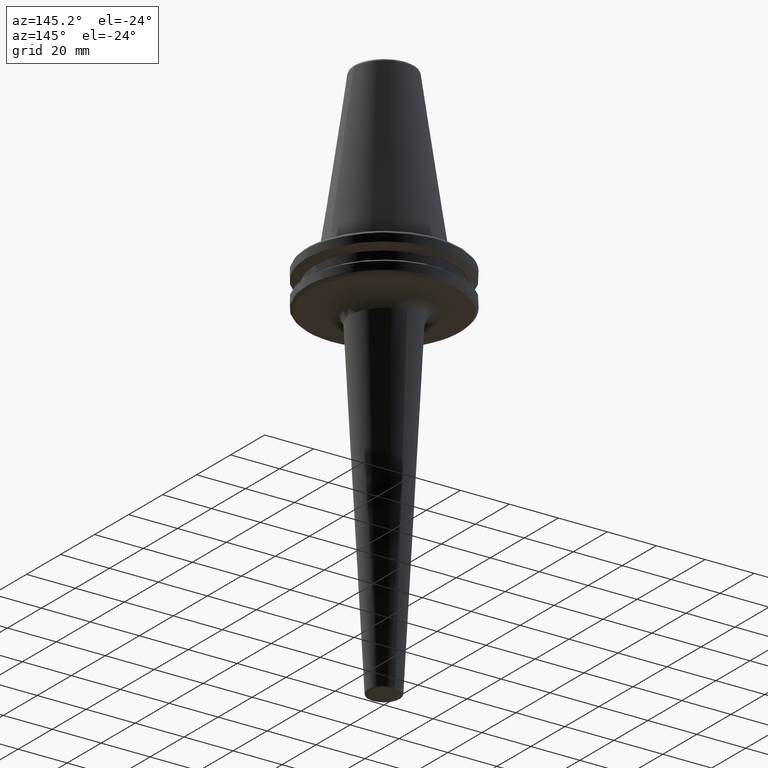
[diagram: clean part render]
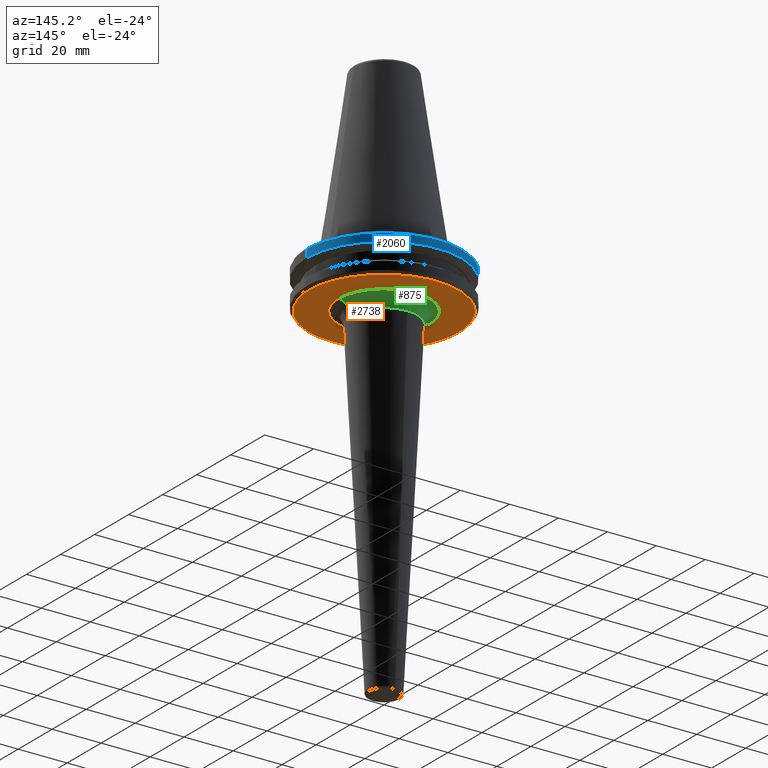
[diagram: same view with three faces highlighted in distinct colors, each labeled with its STEP entity id]
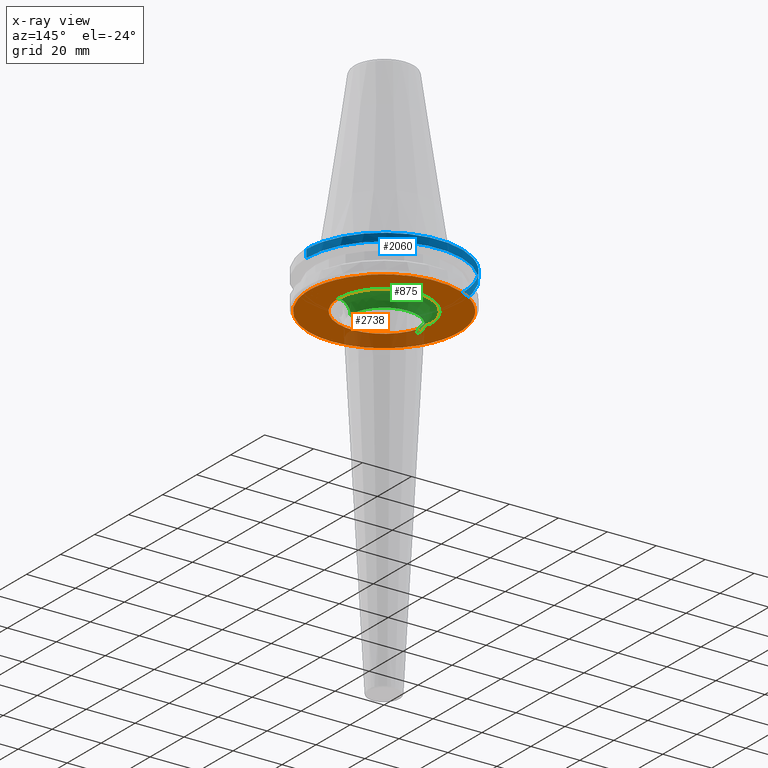
[diagram: x-ray of the same camera — body ghosted, the three highlighted faces saturated]
A machine part, auxiliary view with three faces highlighted in distinct colors.
The next image is the same camera in x-ray (body ghosted, the three faces saturated) — at least one of them is partly hidden behind the body in this view.
Their STEP definitions:

[orange] entity #2738 — the highlighted planar face has unit normal (0, 0, -1).
#27 = CARTESIAN_POINT ( 'NONE',  ( 18.47681577154470000, 2.407236336125492900, -19.10000000000000100 ) ) ;
#36 = CARTESIAN_POINT ( 'NONE',  ( -17.50957756557962600, -6.363842705271316000, -19.10000000000000900 ) ) ;
#41 = CARTESIAN_POINT ( 'NONE',  ( 14.59906577416073300, -26.87526508911176700, -19.10000000000000500 ) ) ;
#50 = CARTESIAN_POINT ( 'NONE',  ( -14.08185776468717000, -12.26358576152868100, -19.10000000000000900 ) ) ;
#52 = CARTESIAN_POINT ( 'NONE',  ( 6.156651080568798800, -29.96331126530298800, -19.10000000000000500 ) ) ;
#56 = CARTESIAN_POINT ( 'NONE',  ( 13.76217383423211000, 27.32011485464017000, -19.10000000000000500 ) ) ;
#59 = CARTESIAN_POINT ( 'NONE',  ( -7.003350881880804100, -17.26259773064247600, -19.10000000000000500 ) ) ;
#64 = CARTESIAN_POINT ( 'NONE',  ( -4.538187366338957100, -30.24578697828068400, -19.10000000000000100 ) ) ;
#72 = CARTESIAN_POINT ( 'NONE',  ( 0.5695464721462079000, -18.62909514851579500, -19.10000000000000100 ) ) ;
#77 = CARTESIAN_POINT ( 'NONE',  ( -12.89007364166148800, -27.74109120042835400, -19.10000000000000100 ) ) ;
#86 = CARTESIAN_POINT ( 'NONE',  ( 6.716631202004693400, -17.37615952874845200, -19.10000000000000900 ) ) ;
#89 = CARTESIAN_POINT ( 'NONE',  ( -22.30836331049845400, -20.92243750512144400, -19.10000000000000500 ) ) ;
#90 = FACE_OUTER_BOUND ( 'NONE', #2078, .T. ) ;
#99 = CARTESIAN_POINT ( 'NONE',  ( 14.27072846274359500, -12.00493524040869700, -19.10000000000000900 ) ) ;
#100 = CARTESIAN_POINT ( 'NONE',  ( 17.76311001678113400, 24.91123626348944600, -19.10000000000000100 ) ) ;
#103 = CARTESIAN_POINT ( 'NONE',  ( -27.75446977479884200, -12.84946292560067400, -19.10000000000000100 ) ) ;
#107 = CARTESIAN_POINT ( 'NONE',  ( 17.30720336254082900, -6.892363872045490500, -19.10000000000000900 ) ) ;
#114 = ORIENTED_EDGE ( 'NONE', *, *, #1169, .T. ) ;
#115 = CARTESIAN_POINT ( 'NONE',  ( -29.50593695887981500, -8.050011640415929600, -19.10000000000000500 ) ) ;
#116 = CARTESIAN_POINT ( 'NONE',  ( 27.56587331839861600, -13.27428387458943800, -19.09999999999999800 ) ) ;
#131 = CARTESIAN_POINT ( 'NONE',  ( 22.52513206187470700, -20.68888644021010800, -19.10000000000000900 ) ) ;
#137 = CARTESIAN_POINT ( 'NONE',  ( -18.30421561271172200, 3.464052774011141100, -19.10000000000000500 ) ) ;
#139 = CARTESIAN_POINT ( 'NONE',  ( 27.46611760510352000, 13.47920850658973700, -19.10000000000000900 ) ) ;
#147 = CARTESIAN_POINT ( 'NONE',  ( -1.420431834630199200, 18.59023160779327100, -19.10000000000000500 ) ) ;
#156 = CARTESIAN_POINT ( 'NONE',  ( 7.112613895100379200, 17.21814400578815800, -19.10000000000000100 ) ) ;
#170 = CARTESIAN_POINT ( 'NONE',  ( 7.869024234952897600, 16.89080400338915000, -19.10000000000000500 ) ) ;
#172 = CARTESIAN_POINT ( 'NONE',  ( 15.99211500375794700, 26.07096171698068000, -19.10000000000000900 ) ) ;
#179 = CARTESIAN_POINT ( 'NONE',  ( 7.366356532716052300, 17.11210951515731100, -19.10000000000000900 ) ) ;
#183 = CARTESIAN_POINT ( 'NONE',  ( -18.62907893455401300, 1.139623749009480300, -19.10000000000000500 ) ) ;
#203 = CARTESIAN_POINT ( 'NONE',  ( -8.767786026824518700, 29.30104552520869300, -19.10000000000000500 ) ) ;
#204 = CARTESIAN_POINT ( 'NONE',  ( -24.35471234555335200, 18.50002675126641800, -19.10000000000000500 ) ) ;
#212 = CARTESIAN_POINT ( 'NONE',  ( 4.194626064597124500, 30.30646449917461300, -19.10000000000000500 ) ) ;
#218 = CARTESIAN_POINT ( 'NONE',  ( -29.50593695866786700, 8.050011641192792700, -19.10000000000000500 ) ) ;
#261 = AXIS2_PLACEMENT_3D ( 'NONE', #2597, #1230, #2833 ) ;
#268 = CARTESIAN_POINT ( 'NONE',  ( -17.37615952874650900, -6.716631202011959600, -19.10000000000000100 ) ) ;
#269 = EDGE_CURVE ( 'NONE', #1141, #2005, #2710, .T. ) ;
#274 = CARTESIAN_POINT ( 'NONE',  ( 14.31298725537405200, -27.02868588326913700, -19.10000000000000500 ) ) ;
#275 = CARTESIAN_POINT ( 'NONE',  ( 0.0000000000000000000, 0.0000000000000000000, -19.10000000000000500 ) ) ;
#281 = CARTESIAN_POINT ( 'NONE',  ( -12.00493524038950000, -14.27072846275191300, -19.10000000000000100 ) ) ;
#282 = CARTESIAN_POINT ( 'NONE',  ( 18.36201096645655900, 3.144544954094638200, -19.10000000000000100 ) ) ;
#285 = CARTESIAN_POINT ( 'NONE',  ( 5.091218007676277900, -30.15789762491641200, -19.10000000000000900 ) ) ;
#289 = CARTESIAN_POINT ( 'NONE',  ( 13.13240365255261600, 27.62148087363473100, -19.10000000000000500 ) ) ;
#293 = CARTESIAN_POINT ( 'NONE',  ( -6.892363872045628200, -17.30720336254066500, -19.10000000000000900 ) ) ;
#297 = CARTESIAN_POINT ( 'NONE',  ( -4.683322544848318900, -30.22365628541788900, -19.10000000000000500 ) ) ;
#308 = CARTESIAN_POINT ( 'NONE',  ( 2.407121318944372800, -18.47683705236954300, -19.10000000000000500 ) ) ;
#311 = CARTESIAN_POINT ( 'NONE',  ( -13.84162992577100000, -27.27309109750847700, -19.10000000000000500 ) ) ;
#318 = CARTESIAN_POINT ( 'NONE',  ( 6.820691861263190600, -17.33557761077281300, -19.10000000000000500 ) ) ;
#320 = CARTESIAN_POINT ( 'NONE',  ( -23.78688261721307700, -19.25759772824421400, -19.10000000000000100 ) ) ;
#326 = CARTESIAN_POINT ( 'NONE',  ( 15.27885538839230200, -10.66049279827750100, -19.10000000000000900 ) ) ;
#329 = CARTESIAN_POINT ( 'NONE',  ( -27.86171205598864400, -12.61459124129725500, -19.10000000000000100 ) ) ;
#338 = CARTESIAN_POINT ( 'NONE',  ( 17.83481749245727200, -5.441075510844443700, -19.10000000000000500 ) ) ;
#345 = CIRCLE ( 'NONE', #261, 30.58435880041008700 ) ;
#355 = CARTESIAN_POINT ( 'NONE',  ( 26.29437709911257700, -15.63042418696883700, -19.10000000000000500 ) ) ;
#364 = CARTESIAN_POINT ( 'NONE',  ( 21.20610461385350800, -22.10596665135101400, -19.10000000000000100 ) ) ;
#370 = CARTESIAN_POINT ( 'NONE',  ( -14.95403420513760500, 11.11780609298014800, -19.10000000000000500 ) ) ;
#371 = CARTESIAN_POINT ( 'NONE',  ( 24.61278002360990800, 18.15588099004128300, -19.10000000000000500 ) ) ;
#379 = DIRECTION ( 'NONE',  ( 1.000000000000000000, 0.0000000000000000000, 0.0000000000000000000 ) ) ;
#384 = CARTESIAN_POINT ( 'NONE',  ( 7.003350881872818500, 17.26259773064711900, -19.09999999999999800 ) ) ;
#393 = CARTESIAN_POINT ( 'NONE',  ( 1.139092944354781500, 18.62904650663044800, -19.10000000000000900 ) ) ;
#400 = CARTESIAN_POINT ( 'NONE',  ( -10.06201851833707100, 15.67815620473481200, -19.10000000000000900 ) ) ;
#402 = CARTESIAN_POINT ( 'NONE',  ( 16.32111855271079600, 25.86556262578678700, -19.10000000000000100 ) ) ;
#421 = CARTESIAN_POINT ( 'NONE',  ( 4.422586205312390100, 18.10102344444453200, -19.10000000000000500 ) ) ;
#439 = CARTESIAN_POINT ( 'NONE',  ( -8.917516567687371800, 29.25582015750815400, -19.10000000000000500 ) ) ;
#440 = CARTESIAN_POINT ( 'NONE',  ( -25.54018883534800800, 16.93931054832113100, -19.10000000000000500 ) ) ;
#448 = CARTESIAN_POINT ( 'NONE',  ( 3.271282400886674800, 30.41520625110938200, -19.10000000000000500 ) ) ;
#461 = CARTESIAN_POINT ( 'NONE',  ( -18.47681577154469700, -2.407236336101284700, -19.10000000000000100 ) ) ;
#483 = CARTESIAN_POINT ( 'NONE',  ( 18.62907893455400900, 2.281404188826494800E-015, -19.10000000000000500 ) ) ;
#499 = CARTESIAN_POINT ( 'NONE',  ( -17.33557761077345200, -6.820691861262209200, -19.10000000000000900 ) ) ;
#503 = CARTESIAN_POINT ( 'NONE',  ( 12.31769431721571500, -28.01687458684701700, -19.10000000000000500 ) ) ;
#504 = DIRECTION ( 'NONE',  ( 1.000000000000000000, 0.0000000000000000000, 0.0000000000000000000 ) ) ;
#512 = CARTESIAN_POINT ( 'NONE',  ( -10.66049279826910900, -15.27885538839594500, -19.10000000000000100 ) ) ;
#517 = CARTESIAN_POINT ( 'NONE',  ( 4.836401133027773200, -30.19953865469284100, -19.10000000000000100 ) ) ;
#523 = CARTESIAN_POINT ( 'NONE',  ( 13.06536007812701200, 27.65325169537482700, -19.10000000000000100 ) ) ;
#526 = CARTESIAN_POINT ( 'NONE',  ( -5.441075510840756900, -17.83481749246170600, -19.10000000000000500 ) ) ;
#528 = CARTESIAN_POINT ( 'NONE',  ( -6.763633612821551300, -29.84719582226912800, -19.10000000000000500 ) ) ;
#536 = CARTESIAN_POINT ( 'NONE',  ( 3.144509011225534500, -18.36201761671432600, -19.10000000000000500 ) ) ;
#537 = CARTESIAN_POINT ( 'NONE',  ( -14.12359010196327200, -27.12814019750088700, -19.10000000000000900 ) ) ;
#545 = CARTESIAN_POINT ( 'NONE',  ( 8.298418015625378200, -16.69963630713130300, -19.10000000000000500 ) ) ;
#546 = CARTESIAN_POINT ( 'NONE',  ( 18.62907893455400900, 2.281404188826494800E-015, -19.10000000000000500 ) ) ;
#549 = CARTESIAN_POINT ( 'NONE',  ( -25.10709178878912300, -17.46754491848619800, -19.10000000000000500 ) ) ;
#560 = CARTESIAN_POINT ( 'NONE',  ( 15.50405769322159300, -10.32827548641461500, -19.10000000000000100 ) ) ;
#564 = CARTESIAN_POINT ( 'NONE',  ( -28.55403585648227600, -11.07200170706531000, -19.10000000000000100 ) ) ;
#570 = CARTESIAN_POINT ( 'NONE',  ( 18.21569289364870800, -3.907981740107966800, -19.10000000000000500 ) ) ;
#571 = CARTESIAN_POINT ( 'NONE',  ( 26.66158410836062100, 14.98553842598051500, -19.10000000000000500 ) ) ;
#578 = CARTESIAN_POINT ( 'NONE',  ( 15.52813128130545700, 26.35237235011442500, -19.10000000000000900 ) ) ;
#579 = CARTESIAN_POINT ( 'NONE',  ( 25.72060642469137200, -16.54900938329657500, -19.10000000000000500 ) ) ;
#585 = CARTESIAN_POINT ( 'NONE',  ( -15.50405769322229200, 10.32827548641341900, -19.10000000000000900 ) ) ;
#588 = CARTESIAN_POINT ( 'NONE',  ( 0.0000000000000000000, 2.166680460328873200E-015, -19.10000000000000500 ) ) ;
#592 = CARTESIAN_POINT ( 'NONE',  ( 17.87849741863398000, -24.82948193938068100, -19.10000000000000100 ) ) ;
#601 = CARTESIAN_POINT ( 'NONE',  ( -12.26358576153245900, 14.08185776467510800, -19.10000000000000500 ) ) ;
#602 = CARTESIAN_POINT ( 'NONE',  ( 25.07711885281372900, 17.51959354323408400, -19.10000000000000100 ) ) ;
#611 = CARTESIAN_POINT ( 'NONE',  ( 14.88893184448889400, 11.27016933657729000, -19.10000000000000500 ) ) ;
#620 = CARTESIAN_POINT ( 'NONE',  ( -3.144509011238321600, 18.36201761671432600, -19.10000000000000500 ) ) ;
#630 = CARTESIAN_POINT ( 'NONE',  ( -15.93686166673034800, 9.667253229053775600, -19.10000000000000900 ) ) ;
#631 = VERTEX_POINT ( 'NONE', #218 ) ;
#648 = DIRECTION ( 'NONE',  ( -0.0000000000000000000, -0.0000000000000000000, 1.000000000000000000 ) ) ;
#660 = CARTESIAN_POINT ( 'NONE',  ( -2.898963534869526600, 18.40312633517915200, -19.10000000000000100 ) ) ;
#666 = CARTESIAN_POINT ( 'NONE',  ( -7.396785857642844200, 29.70357443817780300, -19.10000000000000100 ) ) ;
#673 = CARTESIAN_POINT ( 'NONE',  ( -9.218324187523917200, 29.16244582629286700, -19.10000000000000100 ) ) ;
#674 = CARTESIAN_POINT ( 'NONE',  ( -26.56612284950205100, 15.28016086959555500, -19.10000000000000500 ) ) ;
#681 = CARTESIAN_POINT ( 'NONE',  ( 2.575749856820219300, 30.47575675141769800, -19.10000000000000500 ) ) ;
#685 = CARTESIAN_POINT ( 'NONE',  ( 2.495993614183678500, 30.48239565653807800, -19.10000000000000500 ) ) ;
#694 = CARTESIAN_POINT ( 'NONE',  ( -18.36201096645656200, -3.144544954087070500, -19.10000000000000500 ) ) ;
#695 = EDGE_CURVE ( 'NONE', #2114, #796, #913, .T. ) ;
#708 = B_SPLINE_CURVE_WITH_KNOTS ( 'NONE', 3,
 ( #1183, #2786, #1876, #461, #2108, #694, #2370, #975, #2591, #1223, #2828, #1459, #36, #1692, #268, #1922, #499, #2154, #745, #2379, #987, #2604, #1239, #2838, #1467, #50, #1705, #281, #1936, #512, #2165, #758, #2391, #1001, #2615, #1253, #2852, #1480, #59, #1725, #293, #1947, #526, #2180, #769, #2402, #1017, #2626, #1263, #2864, #1492, #72, #1736, #308, #1959, #536, #2193, #781, #2412, #1027, #2640, #1274, #2872, #1506, #86, #1748, #318, #1970, #545, #2198, #798, #2423, #1033, #2651, #1287, #2882, #1514, #99, #1757, #326, #1982, #560, #2209, #807, #2435, #1046, #2660, #1297, #2898, #1523, #107, #1770, #338, #1988, #570, #2223, #817, #2444, #1059, #2668, #1306, #2908 ),
 .UNSPECIFIED., .F., .F.,
 ( 4, 1, 1, 1, 1, 2, 2, 1, 1, 1, 1, 2, 2, 1, 1, 1, 2, 2, 2, 1, 1, 1, 2, 2, 1, 1, 1, 1, 2, 2, 1, 1, 1, 1, 2, 2, 2, 1, 1, 1, 1, 2, 2, 1, 1, 1, 1, 2, 2, 1, 1, 1, 2, 2, 2, 1, 1, 1, 2, 2, 1, 1, 1, 1, 2, 2, 1, 1, 1, 1, 2, 2, 4 ),
 ( 0.0000000000000000000, 0.03125000000000194300, 0.04687500000000292800, 0.05468750000000340700, 0.05859375000000362900, 0.06054687500000371900, 0.06250000000000381600, 0.09375000000000552300, 0.1093750000000064000, 0.1171875000000068000, 0.1210937500000069800, 0.1230468750000070500, 0.1250000000000071100, 0.1562500000000077400, 0.1718750000000080500, 0.1796875000000081600, 0.1835937500000082200, 0.1875000000000082700, 0.2500000000000106600, 0.2812500000000118800, 0.2968750000000124300, 0.3046875000000127100, 0.3085937500000128800, 0.3125000000000129900, 0.3437500000000147100, 0.3593750000000155400, 0.3671875000000159900, 0.3710937500000162100, 0.3730468750000162600, 0.3750000000000163200, 0.4062500000000161500, 0.4218750000000161000, 0.4296875000000161000, 0.4335937500000161000, 0.4355468750000160400, 0.4375000000000159900, 0.5000000000000155400, 0.5312500000000153200, 0.5468750000000152100, 0.5546875000000152100, 0.5585937500000152100, 0.5605468750000152100, 0.5625000000000152100, 0.5937500000000153200, 0.6093750000000154300, 0.6171875000000155400, 0.6210937500000155400, 0.6230468750000154300, 0.6250000000000153200, 0.6562500000000138800, 0.6718750000000132100, 0.6796875000000129900, 0.6835937500000127700, 0.6875000000000125500, 0.7500000000000107700, 0.7812500000000098800, 0.7968750000000094400, 0.8046875000000093300, 0.8085937500000092100, 0.8125000000000091000, 0.8437500000000079900, 0.8593750000000075500, 0.8671875000000073300, 0.8710937500000071100, 0.8730468750000069900, 0.8750000000000068800, 0.9062500000000050000, 0.9218750000000041100, 0.9296875000000037700, 0.9335937500000035500, 0.9355468750000034400, 0.9375000000000033300, 1.000000000000000000 ),
 .UNSPECIFIED. ) ;
#721 = B_SPLINE_CURVE_WITH_KNOTS ( 'NONE', 3,
 ( #1403, #1631, #911, #674, #440, #204 ),
 .UNSPECIFIED., .F., .F.,
 ( 4, 2, 4 ),
 ( 0.0000000000000000000, 0.5000000000000000000, 1.000000000000000000 ),
 .UNSPECIFIED. ) ;
#724 = CARTESIAN_POINT ( 'NONE',  ( 17.68574521571517300, 5.866920367916408800, -19.10000000000000500 ) ) ;
#745 = CARTESIAN_POINT ( 'NONE',  ( -16.69963630711338000, -8.298418015652794500, -19.10000000000000100 ) ) ;
#746 = B_SPLINE_CURVE_WITH_KNOTS ( 'NONE', 3,
 ( #2884, #1772, #819, #2446, #1062, #2672, #1308, #2909, #1537, #116, #1782, #355, #2003, #579, #2232, #834, #2454, #1071, #2684, #1317, #2918, #1547, #131, #1789, #364, #2014, #592, #1229, #2832, #1464, #41, #1696, #274, #1928, #503, #2157, #749, #2381, #991, #2609, #1244, #2842, #1473, #52, #1711, #285, #1939, #517, #2169, #761, #2395, #1005, #2620, #1257, #2857, #1484, #64, #1730, #297, #1951, #528, #2186, #773, #2406, #1020, #2631, #1265, #2868, #1498, #77, #1739, #311, #1962, #537, #2194, #786, #2416, #1028, #2643, #1276, #2875, #1508, #89, #1750, #320, #1974, #549, #2201, #802, #2427, #1039, #2655, #1290, #2885, #1517, #103, #1761, #329, #1984, #564, #2211, #811 ),
 .UNSPECIFIED., .F., .F.,
 ( 4, 1, 1, 1, 1, 2, 2, 1, 1, 1, 1, 2, 2, 1, 1, 1, 2, 2, 2, 1, 1, 1, 2, 2, 1, 1, 1, 1, 2, 2, 1, 1, 1, 1, 2, 2, 2, 1, 1, 1, 1, 2, 2, 1, 1, 1, 1, 2, 2, 1, 1, 1, 2, 2, 2, 1, 1, 1, 2, 2, 1, 1, 1, 1, 2, 2, 1, 1, 1, 1, 2, 2, 4 ),
 ( 0.0000000000000000000, 0.03125000000000043000, 0.04687500000000063800, 0.05468750000000073600, 0.05859375000000075600, 0.06054687500000074200, 0.06250000000000072200, 0.09375000000000025000, 0.1093750000000000400, 0.1171874999999999200, 0.1210937499999997900, 0.1230468749999997600, 0.1249999999999997400, 0.1562499999999992200, 0.1718749999999989700, 0.1796874999999988600, 0.1835937499999988100, 0.1874999999999987500, 0.2499999999999989500, 0.2812499999999990000, 0.2968749999999991100, 0.3046874999999991700, 0.3085937499999991700, 0.3124999999999991100, 0.3437499999999990600, 0.3593749999999990600, 0.3671874999999990600, 0.3710937499999991100, 0.3730468749999991700, 0.3749999999999991700, 0.4062499999999991100, 0.4218749999999990600, 0.4296874999999990600, 0.4335937499999990600, 0.4355468749999990600, 0.4374999999999990600, 0.4999999999999995000, 0.5312499999999997800, 0.5468749999999998900, 0.5546875000000000000, 0.5585937500000000000, 0.5605468750000001100, 0.5625000000000001100, 0.5937500000000005600, 0.6093750000000007800, 0.6171875000000008900, 0.6210937500000008900, 0.6230468750000008900, 0.6250000000000008900, 0.6562500000000010000, 0.6718750000000010000, 0.6796875000000010000, 0.6835937500000011100, 0.6875000000000011100, 0.7500000000000013300, 0.7812500000000013300, 0.7968750000000013300, 0.8046875000000013300, 0.8085937500000012200, 0.8125000000000012200, 0.8437500000000014400, 0.8593750000000015500, 0.8671875000000015500, 0.8710937500000015500, 0.8730468750000015500, 0.8750000000000015500, 0.9062500000000016700, 0.9218750000000017800, 0.9296875000000017800, 0.9335937500000017800, 0.9355468750000017800, 0.9375000000000017800, 1.000000000000000000 ),
 .UNSPECIFIED. ) ;
#747 = CARTESIAN_POINT ( 'NONE',  ( 18.33093065326250600, 3.319757378721821100, -19.10000000000000100 ) ) ;
#749 = CARTESIAN_POINT ( 'NONE',  ( 10.24327173504158100, -28.81937833701286400, -19.10000000000000500 ) ) ;
#758 = CARTESIAN_POINT ( 'NONE',  ( -10.32827548641196300, -15.50405769322274300, -19.10000000000001200 ) ) ;
#761 = CARTESIAN_POINT ( 'NONE',  ( 3.166151006705770800, -30.46140382597060600, -19.10000000000001200 ) ) ;
#766 = CARTESIAN_POINT ( 'NONE',  ( 12.92802695592982500, 27.71772311958008600, -19.10000000000000900 ) ) ;
#769 = CARTESIAN_POINT ( 'NONE',  ( -3.907981740106348100, -18.21569289365065800, -19.10000000000000900 ) ) ;
#771 = CARTESIAN_POINT ( 'NONE',  ( 18.20818653211747000, 3.983712655979573000, -19.10000000000000500 ) ) ;
#773 = CARTESIAN_POINT ( 'NONE',  ( -8.850750154841392700, -29.27696876187939500, -19.10000000000000500 ) ) ;
#781 = CARTESIAN_POINT ( 'NONE',  ( 3.319746595861086600, -18.33093264833983900, -19.10000000000000100 ) ) ;
#786 = CARTESIAN_POINT ( 'NONE',  ( -17.19359987793792800, -25.35249706495551100, -19.10000000000000900 ) ) ;
#796 = VERTEX_POINT ( 'NONE', #1101 ) ;
#798 = CARTESIAN_POINT ( 'NONE',  ( 9.729647426410407400, -15.88777661285505100, -19.10000000000000100 ) ) ;
#802 = CARTESIAN_POINT ( 'NONE',  ( -25.40531514043783900, -17.02859819238312900, -19.10000000000000500 ) ) ;
#807 = CARTESIAN_POINT ( 'NONE',  ( 15.93686166671857200, -9.667253229071240700, -19.10000000000001200 ) ) ;
#811 = CARTESIAN_POINT ( 'NONE',  ( -29.50593695887981500, -8.050011640415929600, -19.10000000000000500 ) ) ;
#817 = CARTESIAN_POINT ( 'NONE',  ( 18.29002873029827500, -3.538205770532323300, -19.10000000000000500 ) ) ;
#819 = CARTESIAN_POINT ( 'NONE',  ( 28.94006249014968200, -9.948882374008352500, -19.10000000000000500 ) ) ;
#828 = AXIS2_PLACEMENT_3D ( 'NONE', #2155, #2145, #1938 ) ;
#832 = CARTESIAN_POINT ( 'NONE',  ( 21.40627702113345900, 21.88112117654264600, -19.10000000000000500 ) ) ;
#834 = CARTESIAN_POINT ( 'NONE',  ( 25.57975895856417400, -16.76540627108043000, -19.10000000000000100 ) ) ;
#838 = CARTESIAN_POINT ( 'NONE',  ( -6.363842705281110800, 17.50957756557502900, -19.10000000000000500 ) ) ;
#840 = CARTESIAN_POINT ( 'NONE',  ( 26.58403738893923300, 15.12268211273652300, -19.10000000000000100 ) ) ;
#849 = CARTESIAN_POINT ( 'NONE',  ( 6.295689844189542600, 17.54344029893754000, -19.10000000000000500 ) ) ;
#864 = CARTESIAN_POINT ( 'NONE',  ( -18.10102344444488100, 4.422586205310169700, -19.10000000000000500 ) ) ;
#867 = CARTESIAN_POINT ( 'NONE',  ( 24.51742230446014800, 18.28446092688399100, -19.10000000000000500 ) ) ;
#878 = CARTESIAN_POINT ( 'NONE',  ( 19.38055795302008400, 23.66050113822976500, -19.10000000000001200 ) ) ;
#886 = CARTESIAN_POINT ( 'NONE',  ( 3.464052774011352500, 18.30421561271169800, -19.10000000000000500 ) ) ;
#897 = CARTESIAN_POINT ( 'NONE',  ( -18.29002873029924100, 3.538205770527065800, -19.10000000000000500 ) ) ;
#903 = CARTESIAN_POINT ( 'NONE',  ( -6.786995171133886700, 17.34879446041826900, -19.10000000000001200 ) ) ;
#910 = CARTESIAN_POINT ( 'NONE',  ( -9.668279344121133400, 29.01896080072954100, -19.10000000000000500 ) ) ;
#911 = CARTESIAN_POINT ( 'NONE',  ( -28.29883549210119800, 11.76494105805098300, -19.10000000000000500 ) ) ;
#913 = CIRCLE ( 'NONE', #2646, 30.58435880041008700 ) ;
#920 = CARTESIAN_POINT ( 'NONE',  ( -10.70938079741142000, 28.66019770656558000, -19.10000000000000100 ) ) ;
#921 = CARTESIAN_POINT ( 'NONE',  ( -17.51886799372202900, 25.09995254383747500, -19.10000000000000500 ) ) ;
#924 = CARTESIAN_POINT ( 'NONE',  ( 2.338937091250613300, 30.49485090081023100, -19.10000000000000100 ) ) ;
#933 = CARTESIAN_POINT ( 'NONE',  ( 2.103333420339649000, 30.51262227300270200, -19.10000000000000100 ) ) ;
#934 = EDGE_CURVE ( 'NONE', #631, #2671, #2441, .T. ) ;
#948 = AXIS2_PLACEMENT_3D ( 'NONE', #275, #1930, #504 ) ;
#964 = ORIENTED_EDGE ( 'NONE', *, *, #3002, .F. ) ;
#966 = CARTESIAN_POINT ( 'NONE',  ( 15.67815620473517900, 10.06201851833601200, -19.10000000000000900 ) ) ;
#975 = CARTESIAN_POINT ( 'NONE',  ( -18.33093065326251300, -3.319757378719548700, -19.10000000000000500 ) ) ;
#987 = CARTESIAN_POINT ( 'NONE',  ( -15.88777661284721000, -9.729647426422413800, -19.10000000000000900 ) ) ;
#991 = CARTESIAN_POINT ( 'NONE',  ( 9.741308101238560700, -28.99155239477984500, -19.10000000000000900 ) ) ;
#1001 = CARTESIAN_POINT ( 'NONE',  ( -9.667253229087297200, -15.93686166671044000, -19.10000000000000900 ) ) ;
#1005 = CARTESIAN_POINT ( 'NONE',  ( -0.7936655208069568500, -30.58432798036122000, -19.10000000000000100 ) ) ;
#1012 = CARTESIAN_POINT ( 'NONE',  ( 14.58823882257053300, 26.89349445919003000, -19.10000000000000500 ) ) ;
#1017 = CARTESIAN_POINT ( 'NONE',  ( -3.538205770531814400, -18.29002873029888200, -19.09999999999999800 ) ) ;
#1018 = CARTESIAN_POINT ( 'NONE',  ( 18.62907893455400900, 0.5696341042842090200, -19.10000000000000100 ) ) ;
#1020 = CARTESIAN_POINT ( 'NONE',  ( -9.343182468531940900, -29.12229317852812500, -19.10000000000000500 ) ) ;
#1027 = CARTESIAN_POINT ( 'NONE',  ( 3.983712655935568200, -18.20818653213172300, -19.10000000000000900 ) ) ;
#1028 = CARTESIAN_POINT ( 'NONE',  ( -20.23907096310340100, -22.95838911900774100, -19.10000000000000500 ) ) ;
#1033 = CARTESIAN_POINT ( 'NONE',  ( 10.06201851833321500, -15.67815620473707700, -19.10000000000000900 ) ) ;
#1039 = CARTESIAN_POINT ( 'NONE',  ( -25.49448276515892400, -16.89479980230323600, -19.10000000000000900 ) ) ;
#1046 = CARTESIAN_POINT ( 'NONE',  ( 16.89080400337438800, -7.869024234975484000, -19.10000000000000500 ) ) ;
#1059 = CARTESIAN_POINT ( 'NONE',  ( 18.31159404147076600, -3.424811742454998900, -19.10000000000000100 ) ) ;
#1062 = CARTESIAN_POINT ( 'NONE',  ( 28.18215722315982000, -11.88429583552771100, -19.10000000000000100 ) ) ;
#1071 = CARTESIAN_POINT ( 'NONE',  ( 25.05482143306667100, -17.56072154682019400, -19.10000000000000500 ) ) ;
#1081 = CARTESIAN_POINT ( 'NONE',  ( -9.729647426422612700, 15.88777661284785500, -19.10000000000000500 ) ) ;
#1082 = CARTESIAN_POINT ( 'NONE',  ( 27.03965408853028400, 14.30535447364331600, -19.10000000000000100 ) ) ;
#1093 = CARTESIAN_POINT ( 'NONE',  ( -18.26841923655937800, 3.649339554363968000, -19.10000000000000500 ) ) ;
#1101 = CARTESIAN_POINT ( 'NONE',  ( 29.50593695887979000, 8.050011640416025600, -19.10000000000000500 ) ) ;
#1105 = CARTESIAN_POINT ( 'NONE',  ( -14.27072846274860800, 12.00493524040005200, -19.10000000000000500 ) ) ;
#1117 = CARTESIAN_POINT ( 'NONE',  ( -9.258926059720863600, 16.17074714513647400, -19.10000000000000500 ) ) ;
#1125 = CARTESIAN_POINT ( 'NONE',  ( 10.66049279827750600, 15.27885538839229400, -19.10000000000000500 ) ) ;
#1133 = CARTESIAN_POINT ( 'NONE',  ( 0.0000000000000000000, 0.0000000000000000000, -19.10000000000000500 ) ) ;
#1139 = CARTESIAN_POINT ( 'NONE',  ( 15.63642567147656100, 10.12675396163167500, -19.10000000000000500 ) ) ;
#1141 = VERTEX_POINT ( 'NONE', #546 ) ;
#1150 = CARTESIAN_POINT ( 'NONE',  ( -9.929342443152201300, 15.76253368087430000, -19.10000000000000500 ) ) ;
#1152 = CARTESIAN_POINT ( 'NONE',  ( -11.58667819376902100, 28.31160413811162600, -19.10000000000000900 ) ) ;
#1161 = CARTESIAN_POINT ( 'NONE',  ( -12.23711360209160000, 28.02961778932873900, -19.10000000000000900 ) ) ;
#1165 = CARTESIAN_POINT ( 'NONE',  ( 1.553459315967854200, 30.54770834860802300, -19.10000000000000900 ) ) ;
#1169 = EDGE_CURVE ( 'NONE', #631, #2255, #721, .T. ) ;
#1174 = ORIENTED_EDGE ( 'NONE', *, *, #1182, .T. ) ;
#1179 = CARTESIAN_POINT ( 'NONE',  ( 0.4531822849060669900, 30.59235866177671400, -19.10000000000000500 ) ) ;
#1182 = EDGE_CURVE ( 'NONE', #2327, #796, #2318, .T. ) ;
#1183 = CARTESIAN_POINT ( 'NONE',  ( -18.62907893455400900, 0.0000000000000000000, -19.10000000000000500 ) ) ;
#1189 = ORIENTED_EDGE ( 'NONE', *, *, #695, .F. ) ;
#1223 = CARTESIAN_POINT ( 'NONE',  ( -18.20818653212362600, -3.983712655965813400, -19.10000000000000100 ) ) ;
#1225 = CARTESIAN_POINT ( 'NONE',  ( 18.59020323336013900, 1.420585190817143200, -19.10000000000000500 ) ) ;
#1229 = CARTESIAN_POINT ( 'NONE',  ( 16.82180190648200500, -25.56823429586928900, -19.10000000000000500 ) ) ;
#1230 = DIRECTION ( 'NONE',  ( -0.0000000000000000000, -0.0000000000000000000, 1.000000000000000000 ) ) ;
#1239 = CARTESIAN_POINT ( 'NONE',  ( -15.67815620473459700, -10.06201851833700700, -19.10000000000000500 ) ) ;
#1244 = CARTESIAN_POINT ( 'NONE',  ( 9.588757991871142700, -29.04235927048969000, -19.10000000000000100 ) ) ;
#1247 = CARTESIAN_POINT ( 'NONE',  ( 12.72171218949350900, 27.81364574513149900, -19.10000000000000900 ) ) ;
#1253 = CARTESIAN_POINT ( 'NONE',  ( -7.869024234996557800, -16.89080400336371900, -19.10000000000000900 ) ) ;
#1254 = CARTESIAN_POINT ( 'NONE',  ( 18.34348426510635100, 3.249683346589364900, -19.10000000000000100 ) ) ;
#1257 = CARTESIAN_POINT ( 'NONE',  ( -3.359542261740482900, -30.40384640239971500, -19.10000000000000500 ) ) ;
#1260 = CARTESIAN_POINT ( 'NONE',  ( 12.23810548582505600, 28.03197362945626700, -19.10000000000000500 ) ) ;
#1263 = CARTESIAN_POINT ( 'NONE',  ( -3.424806263792621800, -18.31159505547156400, -19.10000000000000100 ) ) ;
#1265 = CARTESIAN_POINT ( 'NONE',  ( -9.489238364085435900, -29.07503083623364400, -19.10000000000000900 ) ) ;
#1274 = CARTESIAN_POINT ( 'NONE',  ( 5.866920367858656800, -17.68574521573388100, -19.10000000000000500 ) ) ;
#1276 = CARTESIAN_POINT ( 'NONE',  ( -21.86129013470800300, -21.39082914621904400, -19.10000000000000100 ) ) ;
#1287 = CARTESIAN_POINT ( 'NONE',  ( 11.27016933657914400, -14.88893184448703300, -19.10000000000000100 ) ) ;
#1288 = CARTESIAN_POINT ( 'NONE',  ( 26.18838791784893500, 15.80329267786272900, -19.10000000000000500 ) ) ;
#1290 = CARTESIAN_POINT ( 'NONE',  ( -26.61736808516047900, -15.10355864978086500, -19.10000000000000500 ) ) ;
#1297 = CARTESIAN_POINT ( 'NONE',  ( 17.21814400578355700, -7.112613895107429600, -19.10000000000000900 ) ) ;
#1306 = CARTESIAN_POINT ( 'NONE',  ( 18.62907893455400900, -1.139623749009032800, -19.10000000000000500 ) ) ;
#1308 = CARTESIAN_POINT ( 'NONE',  ( 27.98481301560113700, -12.33908451847029400, -19.10000000000000500 ) ) ;
#1317 = CARTESIAN_POINT ( 'NONE',  ( 23.37016937102523100, -19.73720656645907200, -19.10000000000000500 ) ) ;
#1323 = CARTESIAN_POINT ( 'NONE',  ( -3.983712655978607600, 18.20818653211764400, -19.10000000000001200 ) ) ;
#1324 = DIRECTION ( 'NONE',  ( 0.0000000000000000000, 0.0000000000000000000, -1.000000000000000000 ) ) ;
#1325 = CARTESIAN_POINT ( 'NONE',  ( 24.32635705293869000, 18.53792103917297500, -19.10000000000000100 ) ) ;
#1334 = CARTESIAN_POINT ( 'NONE',  ( -0.5695464721773835200, 18.62909514851579500, -19.10000000000000900 ) ) ;
#1346 = CARTESIAN_POINT ( 'NONE',  ( -3.249662294344949600, 18.34348816025733300, -19.10000000000000100 ) ) ;
#1358 = CARTESIAN_POINT ( 'NONE',  ( -11.27016933659717600, 14.88893184447314900, -19.10000000000000500 ) ) ;
#1378 = CARTESIAN_POINT ( 'NONE',  ( 12.00493524040868800, 14.27072846274360200, -19.10000000000000900 ) ) ;
#1390 = CARTESIAN_POINT ( 'NONE',  ( -12.30602042319770800, 27.99943186576027500, -19.10000000000001600 ) ) ;
#1403 = CARTESIAN_POINT ( 'NONE',  ( -29.50593695866786700, 8.050011641192792700, -19.10000000000000500 ) ) ;
#1409 = CARTESIAN_POINT ( 'NONE',  ( -18.62907893455400900, 0.0000000000000000000, -19.10000000000000500 ) ) ;
#1431 = CARTESIAN_POINT ( 'NONE',  ( 17.50957756557490100, 6.363842705281847100, -19.10000000000000500 ) ) ;
#1459 = CARTESIAN_POINT ( 'NONE',  ( -17.68574521572326600, -5.866920367898354800, -19.10000000000000500 ) ) ;
#1464 = CARTESIAN_POINT ( 'NONE',  ( 14.88253584773120200, -26.72066063288397000, -19.10000000000000100 ) ) ;
#1467 = CARTESIAN_POINT ( 'NONE',  ( -14.88893184446357800, -11.27016933661503400, -19.10000000000000500 ) ) ;
#1468 = CARTESIAN_POINT ( 'NONE',  ( 18.32494124955843200, 3.352684779719404200, -19.10000000000000900 ) ) ;
#1473 = CARTESIAN_POINT ( 'NONE',  ( 7.565125950941371100, -29.65418414010071800, -19.10000000000000500 ) ) ;
#1477 = CARTESIAN_POINT ( 'NONE',  ( 11.26206975055332500, 28.44666309692501500, -19.10000000000000100 ) ) ;
#1480 = CARTESIAN_POINT ( 'NONE',  ( -7.112613895114015400, -17.21814400578022500, -19.10000000000000900 ) ) ;
#1484 = CARTESIAN_POINT ( 'NONE',  ( -4.391022105728267500, -30.26774995785368500, -19.10000000000000500 ) ) ;
#1488 = CARTESIAN_POINT ( 'NONE',  ( 10.41034370100355100, 28.76445469558826700, -19.10000000000000500 ) ) ;
#1492 = CARTESIAN_POINT ( 'NONE',  ( -1.139092944292430200, -18.62904650663044100, -19.10000000000000500 ) ) ;
#1498 = CARTESIAN_POINT ( 'NONE',  ( -11.53725264662773900, -28.34718016712044900, -19.10000000000000900 ) ) ;
#1506 = CARTESIAN_POINT ( 'NONE',  ( 6.610991507886231100, -17.41687739206645300, -19.10000000000000900 ) ) ;
#1508 = CARTESIAN_POINT ( 'NONE',  ( -22.23347045905034500, -21.00201711043238700, -19.10000000000000100 ) ) ;
#1514 = CARTESIAN_POINT ( 'NONE',  ( 13.62732918205481000, -12.71819318049129400, -19.10000000000000900 ) ) ;
#1517 = CARTESIAN_POINT ( 'NONE',  ( -27.60161413460691900, -13.17678050942531300, -19.10000000000001200 ) ) ;
#1523 = CARTESIAN_POINT ( 'NONE',  ( 17.29201362982538700, -6.930394168937644000, -19.10000000000000500 ) ) ;
#1537 = CARTESIAN_POINT ( 'NONE',  ( 27.92527061286967100, -12.47325821572505000, -19.10000000000000900 ) ) ;
#1545 = PLANE ( 'NONE',  #1932 ) ;
#1546 = CARTESIAN_POINT ( 'NONE',  ( 26.70070361132738800, 14.91571867381870400, -19.10000000000000100 ) ) ;
#1547 = CARTESIAN_POINT ( 'NONE',  ( 22.66821511925894200, -20.53202962012767000, -19.10000000000000500 ) ) ;
#1554 = CARTESIAN_POINT ( 'NONE',  ( 6.892363872046767700, 17.30720336254059100, -19.10000000000000500 ) ) ;
#1564 = CARTESIAN_POINT ( 'NONE',  ( -15.27885538839449200, 10.66049279827372100, -19.10000000000000500 ) ) ;
#1567 = CARTESIAN_POINT ( 'NONE',  ( 25.60981177358732800, 16.74023069123413500, -19.10000000000000500 ) ) ;
#1580 = CARTESIAN_POINT ( 'NONE',  ( 14.08185776466523200, 12.26358576153820000, -19.10000000000000500 ) ) ;
#1589 = CARTESIAN_POINT ( 'NONE',  ( 12.71819318049129400, 13.62732918205481700, -19.10000000000000900 ) ) ;
#1591 = CARTESIAN_POINT ( 'NONE',  ( 22.71169545599505600, 20.49349008205810900, -19.10000000000000900 ) ) ;
#1601 = CARTESIAN_POINT ( 'NONE',  ( -17.11210951515769500, 7.366356532715858700, -19.10000000000000500 ) ) ;
#1613 = CARTESIAN_POINT ( 'NONE',  ( -8.298418015653259900, 16.69963630711487600, -19.10000000000000100 ) ) ;
#1618 = ORIENTED_EDGE ( 'NONE', *, *, #934, .F. ) ;
#1620 = CIRCLE ( 'NONE', #948, 30.58435880041008700 ) ;
#1630 = CARTESIAN_POINT ( 'NONE',  ( -12.44675998882116000, 27.93716668423903100, -19.10000000000000500 ) ) ;
#1631 = CARTESIAN_POINT ( 'NONE',  ( -28.99013299704189700, 9.940434568560412700, -19.10000000000000100 ) ) ;
#1692 = CARTESIAN_POINT ( 'NONE',  ( -17.41687739206313900, -6.610991507898639000, -19.10000000000000500 ) ) ;
#1696 = CARTESIAN_POINT ( 'NONE',  ( 14.40947314747780600, -26.97737969063206300, -19.10000000000000500 ) ) ;
#1705 = CARTESIAN_POINT ( 'NONE',  ( -12.71819318048032900, -13.62732918205956700, -19.10000000000000500 ) ) ;
#1709 = EDGE_LOOP ( 'NONE', ( #2599, #2502 ) ) ;
#1711 = CARTESIAN_POINT ( 'NONE',  ( 5.447226833889317300, -30.09658397973939300, -19.10000000000000500 ) ) ;
#1719 = CARTESIAN_POINT ( 'NONE',  ( 8.686726280910074000, 29.34982920450148600, -19.10000000000000900 ) ) ;
#1725 = CARTESIAN_POINT ( 'NONE',  ( -6.930394168939619300, -17.29201362982438900, -19.10000000000000500 ) ) ;
#1726 = CARTESIAN_POINT ( 'NONE',  ( 18.00114972844247400, 4.862576764703277400, -19.10000000000000900 ) ) ;
#1730 = CARTESIAN_POINT ( 'NONE',  ( -4.636279539811212700, -30.23090493186514000, -19.10000000000000100 ) ) ;
#1733 = CARTESIAN_POINT ( 'NONE',  ( 7.517538265328743900, 29.67087649393396000, -19.10000000000000500 ) ) ;
#1736 = CARTESIAN_POINT ( 'NONE',  ( 1.420431834575645500, -18.59023160779327500, -19.10000000000000900 ) ) ;
#1739 = CARTESIAN_POINT ( 'NONE',  ( -13.55750927079556900, -27.41669403125807100, -19.10000000000000500 ) ) ;
#1740 = EDGE_CURVE ( 'NONE', #2005, #1141, #708, .T. ) ;
#1748 = CARTESIAN_POINT ( 'NONE',  ( 6.786995171128587000, -17.34879446042000200, -19.10000000000000900 ) ) ;
#1750 = CARTESIAN_POINT ( 'NONE',  ( -22.95981042903576300, -20.22301021334099100, -19.10000000000000900 ) ) ;
#1757 = CARTESIAN_POINT ( 'NONE',  ( 14.95403420513384400, -11.11780609298662100, -19.10000000000000100 ) ) ;
#1761 = CARTESIAN_POINT ( 'NONE',  ( -27.81895210720312800, -12.70861568514636500, -19.10000000000000500 ) ) ;
#1770 = CARTESIAN_POINT ( 'NONE',  ( 17.54344029893380600, -6.295689844209732700, -19.10000000000000100 ) ) ;
#1772 = CARTESIAN_POINT ( 'NONE',  ( 29.29697359829781100, -8.815762972852718700, -19.10000000000000500 ) ) ;
#1782 = CARTESIAN_POINT ( 'NONE',  ( 27.01453231070431500, -14.38112937620777400, -19.10000000000000900 ) ) ;
#1789 = CARTESIAN_POINT ( 'NONE',  ( 22.45416143053250800, -20.76589565598027000, -19.10000000000000500 ) ) ;
#1797 = CARTESIAN_POINT ( 'NONE',  ( 11.11780609298662400, 14.95403420513384400, -19.10000000000000500 ) ) ;
#1802 = CARTESIAN_POINT ( 'NONE',  ( 16.98334930198293300, 25.44334661411777900, -19.10000000000000500 ) ) ;
#1811 = CARTESIAN_POINT ( 'NONE',  ( -16.41124685782803300, 8.855089347448149800, -19.10000000000000900 ) ) ;
#1815 = CARTESIAN_POINT ( 'NONE',  ( 23.34168654117829400, 19.78065602349450500, -19.10000000000000500 ) ) ;
#1816 = CARTESIAN_POINT ( 'NONE',  ( -24.35471234555335200, 18.50002675126641800, -19.10000000000000500 ) ) ;
#1821 = CARTESIAN_POINT ( 'NONE',  ( -13.62732918205767300, 12.71819318048636300, -19.10000000000000900 ) ) ;
#1829 = CARTESIAN_POINT ( 'NONE',  ( -16.89080400338983900, 7.869024234952564500, -19.10000000000000500 ) ) ;
#1840 = CARTESIAN_POINT ( 'NONE',  ( -10.12675396163042900, 15.63642567147755000, -19.10000000000000500 ) ) ;
#1849 = CARTESIAN_POINT ( 'NONE',  ( 8.855089347448581400, 16.41124685782712300, -19.10000000000000500 ) ) ;
#1857 = CARTESIAN_POINT ( 'NONE',  ( -12.65743148084894200, 27.84302147053579500, -19.10000000000000500 ) ) ;
#1873 = CARTESIAN_POINT ( 'NONE',  ( -0.4908188656923748200, 30.58687863642091600, -19.10000000000000900 ) ) ;
#1876 = CARTESIAN_POINT ( 'NONE',  ( -18.59020323336015000, -1.420585190784870300, -19.10000000000000900 ) ) ;
#1878 = CARTESIAN_POINT ( 'NONE',  ( -18.31159404147076600, 3.424811742454987800, -19.10000000000000500 ) ) ;
#1908 = CARTESIAN_POINT ( 'NONE',  ( -18.50002675305175300, 24.35471234419720700, -19.10000000000000500 ) ) ;
#1922 = CARTESIAN_POINT ( 'NONE',  ( -17.34879446041901500, -6.786995171132308400, -19.10000000000001200 ) ) ;
#1928 = CARTESIAN_POINT ( 'NONE',  ( 13.46675684607612000, -27.47306857769193300, -19.10000000000000900 ) ) ;
#1930 = DIRECTION ( 'NONE',  ( -0.0000000000000000000, -0.0000000000000000000, 1.000000000000000000 ) ) ;
#1932 = AXIS2_PLACEMENT_3D ( 'NONE', #588, #1324, #2924 ) ;
#1936 = CARTESIAN_POINT ( 'NONE',  ( -11.11780609297223100, -14.95403420514007600, -19.10000000000000500 ) ) ;
#1938 = DIRECTION ( 'NONE',  ( 1.000000000000000000, 0.0000000000000000000, 0.0000000000000000000 ) ) ;
#1939 = CARTESIAN_POINT ( 'NONE',  ( 4.938364931540699700, -30.18303432026915800, -19.10000000000000500 ) ) ;
#1944 = CARTESIAN_POINT ( 'NONE',  ( 6.256069620680725600, 29.93772805485906800, -19.10000000000000900 ) ) ;
#1947 = CARTESIAN_POINT ( 'NONE',  ( -6.295689844207634800, -17.54344029893633900, -19.10000000000000100 ) ) ;
#1951 = CARTESIAN_POINT ( 'NONE',  ( -5.550699401406691700, -30.08776695510170300, -19.10000000000000500 ) ) ;
#1959 = CARTESIAN_POINT ( 'NONE',  ( 2.898963534845657700, -18.40312633517915200, -19.10000000000000100 ) ) ;
#1962 = CARTESIAN_POINT ( 'NONE',  ( -14.03061632106972200, -27.17633901377901000, -19.10000000000000900 ) ) ;
#1970 = CARTESIAN_POINT ( 'NONE',  ( 7.442442016726602100, -17.08945232722207000, -19.10000000000000100 ) ) ;
#1971 = CARTESIAN_POINT ( 'NONE',  ( 27.91908508163535500, 12.49379923642603000, -19.10000000000000500 ) ) ;
#1974 = CARTESIAN_POINT ( 'NONE',  ( -24.67913322280990200, -18.07380832753302600, -19.10000000000000500 ) ) ;
#1982 = CARTESIAN_POINT ( 'NONE',  ( 15.41445767665949300, -10.46155523175971200, -19.10000000000000100 ) ) ;
#1984 = CARTESIAN_POINT ( 'NONE',  ( -27.88382002489398900, -12.56563911166203700, -19.10000000000000900 ) ) ;
#1988 = CARTESIAN_POINT ( 'NONE',  ( 18.10102344443962600, -4.422586205338911100, -19.10000000000000900 ) ) ;
#1989 = CARTESIAN_POINT ( 'NONE',  ( 18.64294495310518600, 24.24904771131965500, -19.10000000000000900 ) ) ;
#2003 = CARTESIAN_POINT ( 'NONE',  ( 25.91506848432963000, -16.24456535706762800, -19.10000000000000500 ) ) ;
#2005 = VERTEX_POINT ( 'NONE', #2364 ) ;
#2012 = CARTESIAN_POINT ( 'NONE',  ( -6.716631202015036300, 17.37615952874507000, -19.10000000000000100 ) ) ;
#2014 = CARTESIAN_POINT ( 'NONE',  ( 19.93308098988654800, -23.26029377377305400, -19.10000000000000900 ) ) ;
#2020 = CARTESIAN_POINT ( 'NONE',  ( -17.54344029893781000, 6.295689844187840800, -19.10000000000000500 ) ) ;
#2033 = CARTESIAN_POINT ( 'NONE',  ( -17.30720336254056200, 6.892363872046868100, -19.09999999999999800 ) ) ;
#2042 = VERTEX_POINT ( 'NONE', #2619 ) ;
#2048 = CARTESIAN_POINT ( 'NONE',  ( 28.31382758094056800, 11.56430445685524000, -19.10000000000000900 ) ) ;
#2056 = CARTESIAN_POINT ( 'NONE',  ( 3.907981740092496500, 18.21569289365157100, -19.10000000000000900 ) ) ;
#2066 = CARTESIAN_POINT ( 'NONE',  ( -3.352684779719459700, 18.32494124955842100, -19.10000000000000900 ) ) ;
#2072 = CARTESIAN_POINT ( 'NONE',  ( -3.319746595864925300, 18.33093264833984300, -19.10000000000000500 ) ) ;
#2078 = EDGE_LOOP ( 'NONE', ( #2585, #1618, #114, #964, #1174, #1189, #2935 ) ) ;
#2090 = CARTESIAN_POINT ( 'NONE',  ( -13.14593330072873200, 27.61811721527876200, -19.10000000000000900 ) ) ;
#2091 = CARTESIAN_POINT ( 'NONE',  ( -18.50002675305175300, 24.35471234419720700, -19.10000000000000500 ) ) ;
#2094 = CARTESIAN_POINT ( 'NONE',  ( -1.277990131494122400, 30.55800543620354400, -19.10000000000000500 ) ) ;
#2099 = CARTESIAN_POINT ( 'NONE',  ( -1.437913567965121800, 30.55090690001179600, -19.10000000000000900 ) ) ;
#2108 = CARTESIAN_POINT ( 'NONE',  ( -18.40311392136467100, -2.899030628187192300, -19.10000000000000100 ) ) ;
#2114 = VERTEX_POINT ( 'NONE', #2901 ) ;
#2119 = EDGE_CURVE ( 'NONE', #2042, #2671, #746, .T. ) ;
#2144 = CARTESIAN_POINT ( 'NONE',  ( 17.41687739206060600, 6.610991507904279800, -19.10000000000000100 ) ) ;
#2145 = DIRECTION ( 'NONE',  ( -0.0000000000000000000, -0.0000000000000000000, 1.000000000000000000 ) ) ;
#2154 = CARTESIAN_POINT ( 'NONE',  ( -17.08945232721183400, -7.442442016742268700, -19.10000000000000500 ) ) ;
#2155 = CARTESIAN_POINT ( 'NONE',  ( 0.0000000000000000000, 0.0000000000000000000, -19.10000000000000500 ) ) ;
#2157 = CARTESIAN_POINT ( 'NONE',  ( 10.94079956306805100, -28.56608249322954800, -19.10000000000000900 ) ) ;
#2165 = CARTESIAN_POINT ( 'NONE',  ( -10.46155523175466400, -15.41445767666168700, -19.10000000000000500 ) ) ;
#2169 = CARTESIAN_POINT ( 'NONE',  ( 4.783350766199017600, -30.20798338819395200, -19.10000000000000500 ) ) ;
#2174 = CARTESIAN_POINT ( 'NONE',  ( 6.178357567779041700, 29.95386665788899800, -19.10000000000000900 ) ) ;
#2180 = CARTESIAN_POINT ( 'NONE',  ( -4.422586205336138200, -18.10102344444294800, -19.10000000000000900 ) ) ;
#2186 = CARTESIAN_POINT ( 'NONE',  ( -8.158427338735364700, -29.48125659895528400, -19.10000000000000500 ) ) ;
#2193 = CARTESIAN_POINT ( 'NONE',  ( 3.249662294337458700, -18.34348816025734400, -19.10000000000000500 ) ) ;
#2194 = CARTESIAN_POINT ( 'NONE',  ( -15.74490649238654400, -26.27680638947031300, -19.10000000000000900 ) ) ;
#2198 = CARTESIAN_POINT ( 'NONE',  ( 9.258926059699961200, -16.17074714514880200, -19.10000000000000900 ) ) ;
#2201 = CARTESIAN_POINT ( 'NONE',  ( -25.31652938757393300, -17.16082103678996200, -19.10000000000000100 ) ) ;
#2209 = CARTESIAN_POINT ( 'NONE',  ( 15.54940466881477700, -10.25985874713195200, -19.10000000000000500 ) ) ;
#2211 = CARTESIAN_POINT ( 'NONE',  ( -29.08795742227681900, -9.581875916355663500, -19.09999999999999800 ) ) ;
#2223 = CARTESIAN_POINT ( 'NONE',  ( 18.26841923655774400, -3.649339554372948800, -19.10000000000000900 ) ) ;
#2231 = CARTESIAN_POINT ( 'NONE',  ( 16.18968749047009200, 25.94803225022423700, -19.10000000000000900 ) ) ;
#2232 = CARTESIAN_POINT ( 'NONE',  ( 25.63623530936496000, -16.67892256050461000, -19.10000000000000500 ) ) ;
#2247 = CARTESIAN_POINT ( 'NONE',  ( -15.54940466881331000, 10.25985874713413500, -19.10000000000000500 ) ) ;
#2255 = VERTEX_POINT ( 'NONE', #1816 ) ;
#2261 = CARTESIAN_POINT ( 'NONE',  ( -7.442442016742539600, 17.08945232721268700, -19.10000000000001600 ) ) ;
#2264 = CARTESIAN_POINT ( 'NONE',  ( 24.03691940912555600, 18.91573389369128600, -19.10000000000000500 ) ) ;
#2271 = CARTESIAN_POINT ( 'NONE',  ( -6.820691861262197600, 17.33557761077339500, -19.10000000000000900 ) ) ;
#2272 = CARTESIAN_POINT ( 'NONE',  ( 28.28372968616552200, 11.63773453184817400, -19.10000000000000900 ) ) ;
#2278 = CARTESIAN_POINT ( 'NONE',  ( -18.21569289365178800, 3.907981740091203400, -19.10000000000000900 ) ) ;
#2281 = CARTESIAN_POINT ( 'NONE',  ( 28.79848820868595600, 10.36927195262887700, -19.10000000000000500 ) ) ;
#2290 = CARTESIAN_POINT ( 'NONE',  ( -15.41445767666081500, 10.46155523175743700, -19.10000000000000100 ) ) ;
#2308 = CARTESIAN_POINT ( 'NONE',  ( 2.269733755079712500, 18.52537795001144600, -19.10000000000000900 ) ) ;
#2318 = B_SPLINE_CURVE_WITH_KNOTS ( 'NONE', 3,
 ( #2091, #921, #2539, #2530, #2090, #1857, #1630, #1390, #1161, #1152, #920, #910, #673, #439, #203, #666, #3008, #2771, #2544, #2332, #2323, #2099, #2094, #1873, #1179, #1165, #933, #924, #685, #681, #448, #212, #2550, #2861, #2846, #2174, #1944, #1733, #1719, #1488, #1477, #1260, #1247, #766, #523, #289, #56, #1012, #578, #172, #2231, #402, #2694, #1802, #100, #1989, #2452, #2463, #878, #2925, #832, #1591, #1815, #2264, #1325, #867, #371, #602, #1567, #1288, #2507, #840, #571, #1546, #1082, #139, #1971, #2720, #2484, #2272, #2048, #2281, #2669, #2706 ),
 .UNSPECIFIED., .F., .F.,
 ( 4, 1, 1, 1, 1, 2, 2, 1, 1, 2, 2, 2, 1, 1, 2, 2, 1, 1, 1, 2, 2, 1, 1, 1, 2, 2, 2, 1, 1, 1, 2, 2, 1, 1, 1, 2, 2, 1, 1, 2, 2, 2, 1, 1, 2, 2, 1, 1, 1, 2, 2, 1, 1, 1, 2, 2, 4 ),
 ( 0.0000000000000000000, 0.06250000000000043000, 0.09375000000000063800, 0.1093750000000007500, 0.1171875000000008000, 0.1210937500000008700, 0.1250000000000009400, 0.1562500000000016900, 0.1718750000000020300, 0.1796875000000022200, 0.1875000000000024100, 0.2500000000000042200, 0.2812500000000051600, 0.2968750000000056100, 0.3046875000000058300, 0.3125000000000060500, 0.3437500000000069400, 0.3593750000000073800, 0.3671875000000076100, 0.3710937500000076600, 0.3750000000000077700, 0.4062500000000085500, 0.4218750000000089900, 0.4296875000000092100, 0.4335937500000093800, 0.4375000000000094900, 0.5000000000000109900, 0.5312500000000117700, 0.5468750000000121000, 0.5546875000000122100, 0.5585937500000123200, 0.5625000000000123200, 0.5937500000000121000, 0.6093750000000119900, 0.6171875000000117700, 0.6210937500000117700, 0.6250000000000116600, 0.6562500000000113200, 0.6718750000000111000, 0.6796875000000108800, 0.6875000000000107700, 0.7500000000000093300, 0.7812500000000086600, 0.7968750000000082200, 0.8046875000000079900, 0.8125000000000076600, 0.8437500000000067700, 0.8593750000000063300, 0.8671875000000061100, 0.8710937500000060000, 0.8750000000000058800, 0.9062500000000048800, 0.9218750000000044400, 0.9296875000000043300, 0.9335937500000041100, 0.9375000000000038900, 1.000000000000000000 ),
 .UNSPECIFIED. ) ;
#2323 = CARTESIAN_POINT ( 'NONE',  ( -1.754889633223906300, 30.53434994063401200, -19.10000000000000500 ) ) ;
#2327 = VERTEX_POINT ( 'NONE', #1908 ) ;
#2332 = CARTESIAN_POINT ( 'NONE',  ( -2.229972106739516000, 30.50583071842478200, -19.10000000000000500 ) ) ;
#2351 = CARTESIAN_POINT ( 'NONE',  ( 15.88777661284904100, 9.729647426419255400, -19.10000000000000900 ) ) ;
#2363 = CARTESIAN_POINT ( 'NONE',  ( 18.40311392136466800, 2.899030628201316500, -19.10000000000000500 ) ) ;
#2364 = CARTESIAN_POINT ( 'NONE',  ( -18.62907893455400900, 0.0000000000000000000, -19.10000000000000500 ) ) ;
#2370 = CARTESIAN_POINT ( 'NONE',  ( -18.34348426510636200, -3.249683346584931100, -19.10000000000000500 ) ) ;
#2379 = CARTESIAN_POINT ( 'NONE',  ( -16.17074714513535800, -9.258926059720526100, -19.10000000000000900 ) ) ;
#2381 = CARTESIAN_POINT ( 'NONE',  ( 9.892237708290188900, -28.94069923155255000, -19.10000000000000500 ) ) ;
#2391 = CARTESIAN_POINT ( 'NONE',  ( -10.25985874712994800, -15.54940466881579700, -19.10000000000000500 ) ) ;
#2395 = CARTESIAN_POINT ( 'NONE',  ( 1.587331041613742700, -30.58428776442982800, -19.10000000000000500 ) ) ;
#2402 = CARTESIAN_POINT ( 'NONE',  ( -3.649339554372083700, -18.26841923655878100, -19.10000000000001200 ) ) ;
#2406 = CARTESIAN_POINT ( 'NONE',  ( -9.195643051181685100, -29.16949528698672400, -19.10000000000000900 ) ) ;
#2412 = CARTESIAN_POINT ( 'NONE',  ( 3.352684779722147300, -18.32494124955753600, -19.10000000000000100 ) ) ;
#2416 = CARTESIAN_POINT ( 'NONE',  ( -19.24823797460855300, -23.78338029378941300, -19.10000000000001200 ) ) ;
#2423 = CARTESIAN_POINT ( 'NONE',  ( 9.929342443144857800, -15.76253368087862600, -19.10000000000000500 ) ) ;
#2427 = CARTESIAN_POINT ( 'NONE',  ( -25.46428937167067700, -16.94027857338939600, -19.10000000000000500 ) ) ;
#2428 = FACE_BOUND ( 'NONE', #1709, .T. ) ;
#2435 = CARTESIAN_POINT ( 'NONE',  ( 16.41124685780742700, -8.855089347478699600, -19.10000000000000500 ) ) ;
#2441 = CIRCLE ( 'NONE', #828, 30.58435880041008700 ) ;
#2444 = CARTESIAN_POINT ( 'NONE',  ( 18.30421561271123600, -3.464052774013834500, -19.10000000000000900 ) ) ;
#2446 = CARTESIAN_POINT ( 'NONE',  ( 28.44748858146412100, -11.24368615697392600, -19.10000000000000100 ) ) ;
#2452 = CARTESIAN_POINT ( 'NONE',  ( 19.01361294775681200, 23.95638265829615000, -19.09999999999999800 ) ) ;
#2454 = CARTESIAN_POINT ( 'NONE',  ( 25.55219655712748800, -16.80738867178014600, -19.10000000000000900 ) ) ;
#2458 = CARTESIAN_POINT ( 'NONE',  ( 3.538205770527473400, 18.29002873029917400, -19.10000000000000500 ) ) ;
#2463 = CARTESIAN_POINT ( 'NONE',  ( 19.25930180620994000, 23.75930152089461000, -19.10000000000001200 ) ) ;
#2473 = CARTESIAN_POINT ( 'NONE',  ( 3.649339554364663800, 18.26841923655927100, -19.10000000000000500 ) ) ;
#2484 = CARTESIAN_POINT ( 'NONE',  ( 28.22432639104233900, 11.78107541670503600, -19.10000000000000500 ) ) ;
#2488 = CARTESIAN_POINT ( 'NONE',  ( -17.29201362982682300, 6.930394168935499100, -19.10000000000000500 ) ) ;
#2502 = ORIENTED_EDGE ( 'NONE', *, *, #269, .T. ) ;
#2504 = CARTESIAN_POINT ( 'NONE',  ( -4.862576764701593400, 18.00114972844278700, -19.10000000000000500 ) ) ;
#2507 = CARTESIAN_POINT ( 'NONE',  ( 26.46695125748617600, 15.32790333300081500, -19.10000000000000900 ) ) ;
#2517 = CARTESIAN_POINT ( 'NONE',  ( 6.930394168935532800, 17.29201362982675900, -19.10000000000000100 ) ) ;
#2530 = CARTESIAN_POINT ( 'NONE',  ( -14.11067696108144500, 27.14738034496676300, -19.10000000000000500 ) ) ;
#2539 = CARTESIAN_POINT ( 'NONE',  ( -15.99112436415940900, 26.12219316515105300, -19.10000000000000900 ) ) ;
#2544 = CARTESIAN_POINT ( 'NONE',  ( -3.335826507667983200, 30.41349938460541600, -19.10000000000000100 ) ) ;
#2549 = CARTESIAN_POINT ( 'NONE',  ( -18.52541039803703900, 2.269558437862210000, -19.10000000000000500 ) ) ;
#2550 = CARTESIAN_POINT ( 'NONE',  ( 5.264802480930863600, 30.13058555675097900, -19.10000000000000100 ) ) ;
#2585 = ORIENTED_EDGE ( 'NONE', *, *, #2119, .T. ) ;
#2591 = CARTESIAN_POINT ( 'NONE',  ( -18.32494124955804800, -3.352684779720258600, -19.10000000000000500 ) ) ;
#2592 = CARTESIAN_POINT ( 'NONE',  ( 16.17074714513848100, 9.258926059715111700, -19.10000000000000500 ) ) ;
#2597 = CARTESIAN_POINT ( 'NONE',  ( 0.0000000000000000000, 0.0000000000000000000, -19.10000000000000500 ) ) ;
#2599 = ORIENTED_EDGE ( 'NONE', *, *, #1740, .T. ) ;
#2604 = CARTESIAN_POINT ( 'NONE',  ( -15.76253368087390800, -9.929342443152089400, -19.10000000000000500 ) ) ;
#2606 = CARTESIAN_POINT ( 'NONE',  ( 15.76253368087500000, 9.929342443150179800, -19.10000000000000100 ) ) ;
#2609 = CARTESIAN_POINT ( 'NONE',  ( 9.640580262597561400, -29.02520083562890100, -19.10000000000000500 ) ) ;
#2615 = CARTESIAN_POINT ( 'NONE',  ( -8.855089347506798000, -16.41124685779319100, -19.10000000000000500 ) ) ;
#2617 = CARTESIAN_POINT ( 'NONE',  ( 17.34879446041825100, 6.786995171134001300, -19.09999999999999800 ) ) ;
#2619 = CARTESIAN_POINT ( 'NONE',  ( 29.50593695866786700, -8.050011641192792700, -19.10000000000000500 ) ) ;
#2620 = CARTESIAN_POINT ( 'NONE',  ( -1.980707750522268800, -30.53825656188765000, -19.10000000000000900 ) ) ;
#2626 = CARTESIAN_POINT ( 'NONE',  ( -3.464052774013573400, -18.30421561271154500, -19.10000000000000500 ) ) ;
#2628 = CARTESIAN_POINT ( 'NONE',  ( 17.33557761077330300, 6.820691861262469400, -19.10000000000000500 ) ) ;
#2631 = CARTESIAN_POINT ( 'NONE',  ( -9.441481674779128100, -29.09057131782455500, -19.10000000000000500 ) ) ;
#2640 = CARTESIAN_POINT ( 'NONE',  ( 4.862576764626272300, -18.00114972846742100, -19.10000000000000100 ) ) ;
#2643 = CARTESIAN_POINT ( 'NONE',  ( -21.33119217829327100, -21.92514203399821300, -19.10000000000000500 ) ) ;
#2646 = AXIS2_PLACEMENT_3D ( 'NONE', #1133, #648, #379 ) ;
#2651 = CARTESIAN_POINT ( 'NONE',  ( 10.12675396163155400, -15.63642567147668100, -19.10000000000000900 ) ) ;
#2655 = CARTESIAN_POINT ( 'NONE',  ( -25.97824210456839800, -16.16214345845010000, -19.10000000000000100 ) ) ;
#2660 = CARTESIAN_POINT ( 'NONE',  ( 17.11210951514869900, -7.366356532729224900, -19.10000000000000900 ) ) ;
#2668 = CARTESIAN_POINT ( 'NONE',  ( 18.52541039803702800, -2.269558437861760100, -19.10000000000000500 ) ) ;
#2669 = CARTESIAN_POINT ( 'NONE',  ( 29.18634062978594200, 9.221269143563914000, -19.10000000000000500 ) ) ;
#2671 = VERTEX_POINT ( 'NONE', #115 ) ;
#2672 = CARTESIAN_POINT ( 'NONE',  ( 28.04473044301726900, -12.20290262157235800, -19.10000000000000100 ) ) ;
#2684 = CARTESIAN_POINT ( 'NONE',  ( 24.31095900104777700, -18.59161355311120500, -19.10000000000000900 ) ) ;
#2690 = CARTESIAN_POINT ( 'NONE',  ( -2.407121318985285400, 18.47683705236954000, -19.10000000000000100 ) ) ;
#2694 = CARTESIAN_POINT ( 'NONE',  ( 16.38572052405262600, 25.82468945861612000, -19.10000000000000100 ) ) ;
#2703 = CARTESIAN_POINT ( 'NONE',  ( 5.441075510809094200, 17.83481749246380200, -19.10000000000000100 ) ) ;
#2706 = CARTESIAN_POINT ( 'NONE',  ( 29.50593695887979000, 8.050011640416025600, -19.10000000000000500 ) ) ;
#2710 = B_SPLINE_CURVE_WITH_KNOTS ( 'NONE', 3,
 ( #483, #1018, #1225, #27, #2363, #282, #1254, #747, #1468, #771, #1726, #724, #1431, #2144, #2840, #2617, #2628, #2865, #2820, #2592, #2351, #2606, #966, #1139, #611, #1580, #1589, #1378, #1797, #1125, #2737, #2960, #2980, #2923, #1849, #170, #179, #156, #384, #2517, #1554, #849, #2703, #421, #2056, #2473, #2458, #886, #2716, #2308, #393, #1334, #147, #2690, #660, #620, #1346, #2072, #2066, #1323, #2504, #2729, #838, #2939, #2012, #903, #2271, #2261, #1613, #1117, #1081, #1150, #400, #1840, #1358, #601, #1821, #1105, #370, #1564, #2290, #585, #2247, #630, #1811, #1829, #1601, #2745, #2947, #2488, #2033, #2020, #2969, #864, #2278, #1093, #897, #137, #1878, #2549, #183, #1409 ),
 .UNSPECIFIED., .F., .F.,
 ( 4, 1, 1, 1, 1, 2, 2, 1, 1, 1, 1, 2, 2, 1, 1, 1, 2, 2, 2, 1, 1, 1, 2, 2, 1, 1, 1, 1, 2, 2, 1, 1, 1, 1, 2, 2, 2, 1, 1, 1, 1, 2, 2, 1, 1, 1, 1, 2, 2, 1, 1, 1, 2, 2, 2, 1, 1, 1, 2, 2, 1, 1, 1, 1, 2, 2, 1, 1, 1, 1, 2, 2, 4 ),
 ( 0.0000000000000000000, 0.03124999999999917400, 0.04687499999999875100, 0.05468749999999853600, 0.05859374999999844600, 0.06054687499999841100, 0.06249999999999839000, 0.09374999999999778000, 0.1093749999999974900, 0.1171874999999973400, 0.1210937499999972800, 0.1230468749999972500, 0.1249999999999972000, 0.1562499999999966400, 0.1718749999999963400, 0.1796874999999961400, 0.1835937499999960900, 0.1874999999999960300, 0.2499999999999956100, 0.2812499999999954500, 0.2968749999999954500, 0.3046874999999954500, 0.3085937499999954500, 0.3124999999999954500, 0.3437499999999958400, 0.3593749999999960600, 0.3671874999999960600, 0.3710937499999960600, 0.3730468749999960000, 0.3749999999999959500, 0.4062499999999957800, 0.4218749999999956100, 0.4296874999999955600, 0.4335937499999955600, 0.4355468749999955600, 0.4374999999999955600, 0.4999999999999950000, 0.5312499999999947800, 0.5468749999999945600, 0.5546874999999944500, 0.5585937499999944500, 0.5605468749999944500, 0.5624999999999943400, 0.5937499999999938900, 0.6093749999999936700, 0.6171874999999935600, 0.6210937499999934500, 0.6230468749999934500, 0.6249999999999933400, 0.6562499999999935600, 0.6718749999999936700, 0.6796874999999936700, 0.6835937499999937800, 0.6874999999999938900, 0.7499999999999957800, 0.7812499999999966700, 0.7968749999999970000, 0.8046874999999972200, 0.8085937499999973400, 0.8124999999999973400, 0.8437499999999976700, 0.8593749999999978900, 0.8671874999999981100, 0.8710937499999982200, 0.8730468749999982200, 0.8749999999999983300, 0.9062499999999986700, 0.9218749999999990000, 0.9296874999999991100, 0.9335937499999991100, 0.9355468749999991100, 0.9374999999999992200, 1.000000000000000000 ),
 .UNSPECIFIED. ) ;
#2716 = CARTESIAN_POINT ( 'NONE',  ( 3.424806263791943600, 18.31159505547156400, -19.10000000000000500 ) ) ;
#2720 = CARTESIAN_POINT ( 'NONE',  ( 28.13442549670037700, 11.99570152419388200, -19.10000000000000500 ) ) ;
#2729 = CARTESIAN_POINT ( 'NONE',  ( -5.866920367915152000, 17.68574521571541100, -19.10000000000000900 ) ) ;
#2737 = CARTESIAN_POINT ( 'NONE',  ( 10.46155523175971400, 15.41445767665949000, -19.10000000000000100 ) ) ;
#2738 = ADVANCED_FACE ( 'NONE', ( #90, #2428 ), #1545, .T. ) ;
#2745 = CARTESIAN_POINT ( 'NONE',  ( -17.21814400578837500, 7.112613895100272600, -19.10000000000000100 ) ) ;
#2771 = CARTESIAN_POINT ( 'NONE',  ( -4.279122215993030700, 30.29015284362106900, -19.10000000000000500 ) ) ;
#2786 = CARTESIAN_POINT ( 'NONE',  ( -18.62907893455401600, -0.5696341042657662200, -19.10000000000000900 ) ) ;
#2820 = CARTESIAN_POINT ( 'NONE',  ( 16.69963630711755400, 8.298418015645580700, -19.10000000000000500 ) ) ;
#2828 = CARTESIAN_POINT ( 'NONE',  ( -18.00114972845325700, -4.862576764679206900, -19.10000000000000500 ) ) ;
#2832 = CARTESIAN_POINT ( 'NONE',  ( 15.53753395421813000, -26.34988902405435600, -19.10000000000000900 ) ) ;
#2833 = DIRECTION ( 'NONE',  ( 1.000000000000000000, 0.0000000000000000000, 0.0000000000000000000 ) ) ;
#2838 = CARTESIAN_POINT ( 'NONE',  ( -15.63642567147814700, -10.12675396162931900, -19.10000000000000100 ) ) ;
#2840 = CARTESIAN_POINT ( 'NONE',  ( 17.37615952874503500, 6.716631202015266300, -19.10000000000000500 ) ) ;
#2842 = CARTESIAN_POINT ( 'NONE',  ( 8.754606771855487000, -29.31622083907685900, -19.10000000000000100 ) ) ;
#2846 = CARTESIAN_POINT ( 'NONE',  ( 6.026315443778401900, 29.98482716932647900, -19.10000000000000500 ) ) ;
#2852 = CARTESIAN_POINT ( 'NONE',  ( -7.366356532741517200, -17.11210951514247100, -19.10000000000000900 ) ) ;
#2857 = CARTESIAN_POINT ( 'NONE',  ( -4.047447494820515200, -30.31647627983856800, -19.10000000000000900 ) ) ;
#2861 = CARTESIAN_POINT ( 'NONE',  ( 5.798126224598956200, 30.03039269424756300, -19.10000000000000100 ) ) ;
#2864 = CARTESIAN_POINT ( 'NONE',  ( -2.269733755057794500, -18.52537795001143600, -19.10000000000000500 ) ) ;
#2865 = CARTESIAN_POINT ( 'NONE',  ( 17.08945232721421400, 7.442442016738141300, -19.10000000000000500 ) ) ;
#2868 = CARTESIAN_POINT ( 'NONE',  ( -10.34692081642918300, -28.79347578717342800, -19.10000000000000500 ) ) ;
#2872 = CARTESIAN_POINT ( 'NONE',  ( 6.363842705248154100, -17.50957756558581100, -19.10000000000000500 ) ) ;
#2875 = CARTESIAN_POINT ( 'NONE',  ( -22.08505440506140600, -21.15804733461203200, -19.10000000000000100 ) ) ;
#2882 = CARTESIAN_POINT ( 'NONE',  ( 12.26358576153819900, -14.08185776466523000, -19.10000000000000500 ) ) ;
#2884 = CARTESIAN_POINT ( 'NONE',  ( 29.50593695866786700, -8.050011641192792700, -19.10000000000000500 ) ) ;
#2885 = CARTESIAN_POINT ( 'NONE',  ( -27.28631539589520500, -13.82611176813281700, -19.10000000000000500 ) ) ;
#2898 = CARTESIAN_POINT ( 'NONE',  ( 17.26259773064443300, -7.003350881876947700, -19.10000000000000500 ) ) ;
#2901 = CARTESIAN_POINT ( 'NONE',  ( 30.58435880040136800, 0.0000000000000000000, -19.10000000000000500 ) ) ;
#2908 = CARTESIAN_POINT ( 'NONE',  ( 18.62907893455400900, 2.281404188826494800E-015, -19.10000000000000500 ) ) ;
#2909 = CARTESIAN_POINT ( 'NONE',  ( 27.94464134489557200, -12.42979159005786200, -19.10000000000001200 ) ) ;
#2918 = CARTESIAN_POINT ( 'NONE',  ( 22.88153702451384300, -20.29572449130178000, -19.10000000000000100 ) ) ;
#2923 = CARTESIAN_POINT ( 'NONE',  ( 9.667253229054027800, 15.93686166672982700, -19.10000000000000500 ) ) ;
#2924 = DIRECTION ( 'NONE',  ( -1.000000000000000000, 0.0000000000000000000, -0.0000000000000000000 ) ) ;
#2925 = CARTESIAN_POINT ( 'NONE',  ( 20.48123999505939400, 22.74936446789017100, -19.10000000000000100 ) ) ;
#2935 = ORIENTED_EDGE ( 'NONE', *, *, #3020, .F. ) ;
#2939 = CARTESIAN_POINT ( 'NONE',  ( -6.610991507903890800, 17.41687739206068000, -19.10000000000000900 ) ) ;
#2947 = CARTESIAN_POINT ( 'NONE',  ( -17.26259773064725400, 7.003350881872759000, -19.10000000000000500 ) ) ;
#2960 = CARTESIAN_POINT ( 'NONE',  ( 10.32827548641461700, 15.50405769322159200, -19.10000000000000500 ) ) ;
#2969 = CARTESIAN_POINT ( 'NONE',  ( -17.83481749246427800, 5.441075510806121500, -19.10000000000000100 ) ) ;
#2980 = CARTESIAN_POINT ( 'NONE',  ( 10.25985874713410900, 15.54940466881336800, -19.10000000000000100 ) ) ;
#3002 = EDGE_CURVE ( 'NONE', #2327, #2255, #345, .T. ) ;
#3008 = CARTESIAN_POINT ( 'NONE',  ( -6.159607642682074100, 29.98451923137153200, -19.10000000000000500 ) ) ;
#3020 = EDGE_CURVE ( 'NONE', #2042, #2114, #1620, .T. ) ;

[blue] entity #2060 — the highlighted cylindrical surface (partial cylindrical patch) has radius 31.75 mm, axis along (0, 0, 1).
#3 = CARTESIAN_POINT ( 'NONE',  ( 31.75000000000000000, 0.0000000000000000000, 113.5216080541959500 ) ) ;
#87 = VERTEX_POINT ( 'NONE', #567 ) ;
#121 = EDGE_CURVE ( 'NONE', #2288, #87, #1954, .T. ) ;
#152 = CARTESIAN_POINT ( 'NONE',  ( 0.0000000000000000000, 0.0000000000000000000, -4.365685424949320200 ) ) ;
#169 = CARTESIAN_POINT ( 'NONE',  ( -18.49999999999999600, 25.80334280669851700, -4.365685424949320200 ) ) ;
#176 = DIRECTION ( 'NONE',  ( -0.0000000000000000000, -0.0000000000000000000, -1.000000000000000000 ) ) ;
#325 = CARTESIAN_POINT ( 'NONE',  ( 0.0000000000000000000, 0.0000000000000000000, -4.365685424949320200 ) ) ;
#378 = EDGE_CURVE ( 'NONE', #2288, #1571, #2772, .T. ) ;
#392 = CARTESIAN_POINT ( 'NONE',  ( -31.75000000000000000, 3.888253587292846500E-015, 113.5216080541959500 ) ) ;
#403 = VERTEX_POINT ( 'NONE', #1162 ) ;
#417 = LINE ( 'NONE', #3, #1763 ) ;
#425 = ORIENTED_EDGE ( 'NONE', *, *, #618, .F. ) ;
#442 = CARTESIAN_POINT ( 'NONE',  ( 31.75000000000000000, 0.0000000000000000000, -4.365685424949320200 ) ) ;
#450 = DIRECTION ( 'NONE',  ( 0.0000000000000000000, 0.0000000000000000000, 1.000000000000000000 ) ) ;
#510 = ORIENTED_EDGE ( 'NONE', *, *, #121, .T. ) ;
#518 = ORIENTED_EDGE ( 'NONE', *, *, #2948, .F. ) ;
#558 = DIRECTION ( 'NONE',  ( 1.000000000000000000, 0.0000000000000000000, 0.0000000000000000000 ) ) ;
#567 = CARTESIAN_POINT ( 'NONE',  ( -31.75000000000000000, 3.888253587292846500E-015, -4.365685424949320200 ) ) ;
#618 = EDGE_CURVE ( 'NONE', #622, #700, #759, .T. ) ;
#622 = VERTEX_POINT ( 'NONE', #442 ) ;
#700 = VERTEX_POINT ( 'NONE', #2697 ) ;
#759 = CIRCLE ( 'NONE', #1557, 31.75000000000000000 ) ;
#760 = DIRECTION ( 'NONE',  ( 1.000000000000000000, 0.0000000000000000000, 0.0000000000000000000 ) ) ;
#784 = CARTESIAN_POINT ( 'NONE',  ( 0.0000000000000000000, 0.0000000000000000000, 113.5216080541959500 ) ) ;
#787 = CIRCLE ( 'NONE', #984, 31.75000000000000000 ) ;
#792 = EDGE_CURVE ( 'NONE', #1581, #2107, #2677, .T. ) ;
#871 = EDGE_CURVE ( 'NONE', #403, #2107, #2818, .T. ) ;
#984 = AXIS2_PLACEMENT_3D ( 'NONE', #325, #1981, #558 ) ;
#1050 = CARTESIAN_POINT ( 'NONE',  ( -25.80334280669851700, 18.50000000000000000, -4.365685424949320200 ) ) ;
#1114 = AXIS2_PLACEMENT_3D ( 'NONE', #2478, #2315, #2306 ) ;
#1153 = DIRECTION ( 'NONE',  ( 1.000000000000000000, 0.0000000000000000000, -5.463695987328526400E-017 ) ) ;
#1162 = CARTESIAN_POINT ( 'NONE',  ( -30.52966748735167400, 8.717907037342309100, -4.365685424949320200 ) ) ;
#1318 = DIRECTION ( 'NONE',  ( -0.0000000000000000000, -0.0000000000000000000, -1.000000000000000000 ) ) ;
#1338 = AXIS2_PLACEMENT_3D ( 'NONE', #784, #2642, #760 ) ;
#1345 = CARTESIAN_POINT ( 'NONE',  ( 31.75000000000000000, 0.0000000000000000000, -7.578163357943286500 ) ) ;
#1384 = DIRECTION ( 'NONE',  ( -0.0000000000000000000, -0.0000000000000000000, 1.000000000000000000 ) ) ;
#1557 = AXIS2_PLACEMENT_3D ( 'NONE', #1642, #1384, #2779 ) ;
#1571 = VERTEX_POINT ( 'NONE', #1345 ) ;
#1581 = VERTEX_POINT ( 'NONE', #169 ) ;
#1634 = AXIS2_PLACEMENT_3D ( 'NONE', #2553, #176, #1153 ) ;
#1635 = DIRECTION ( 'NONE',  ( 1.000000000000000000, 0.0000000000000000000, 0.0000000000000000000 ) ) ;
#1642 = CARTESIAN_POINT ( 'NONE',  ( 0.0000000000000000000, 0.0000000000000000000, -4.365685424949320200 ) ) ;
#1680 = ORIENTED_EDGE ( 'NONE', *, *, #871, .T. ) ;
#1759 = ORIENTED_EDGE ( 'NONE', *, *, #792, .F. ) ;
#1763 = VECTOR ( 'NONE', #450, 1000.000000000000000 ) ;
#1888 = ORIENTED_EDGE ( 'NONE', *, *, #2558, .F. ) ;
#1954 = LINE ( 'NONE', #392, #2032 ) ;
#1981 = DIRECTION ( 'NONE',  ( -0.0000000000000000000, -0.0000000000000000000, 1.000000000000000000 ) ) ;
#2032 = VECTOR ( 'NONE', #2836, 1000.000000000000000 ) ;
#2060 = ADVANCED_FACE ( 'NONE', ( #2878 ), #2279, .T. ) ;
#2107 = VERTEX_POINT ( 'NONE', #1050 ) ;
#2217 = EDGE_CURVE ( 'NONE', #1581, #700, #2421, .T. ) ;
#2228 = EDGE_LOOP ( 'NONE', ( #2666, #510, #1888, #1680, #1759, #3013, #425, #518 ) ) ;
#2265 = AXIS2_PLACEMENT_3D ( 'NONE', #2686, #1318, #2920 ) ;
#2279 = CYLINDRICAL_SURFACE ( 'NONE', #1338, 31.75000000000000000 ) ;
#2288 = VERTEX_POINT ( 'NONE', #2494 ) ;
#2306 = DIRECTION ( 'NONE',  ( 1.000000000000000000, 0.0000000000000000000, 0.0000000000000000000 ) ) ;
#2315 = DIRECTION ( 'NONE',  ( -0.0000000000000000000, -0.0000000000000000000, -1.000000000000000000 ) ) ;
#2421 = CIRCLE ( 'NONE', #2265, 31.75000000000000000 ) ;
#2478 = CARTESIAN_POINT ( 'NONE',  ( 0.0000000000000000000, 0.0000000000000000000, -4.365685424949236700 ) ) ;
#2494 = CARTESIAN_POINT ( 'NONE',  ( -31.75000000000000000, 3.888253587292846500E-015, -7.578163357943284800 ) ) ;
#2553 = CARTESIAN_POINT ( 'NONE',  ( 0.0000000000000000000, 0.0000000000000000000, -7.578163357943284800 ) ) ;
#2558 = EDGE_CURVE ( 'NONE', #403, #87, #787, .T. ) ;
#2600 = AXIS2_PLACEMENT_3D ( 'NONE', #152, #2711, #1635 ) ;
#2642 = DIRECTION ( 'NONE',  ( 0.0000000000000000000, 0.0000000000000000000, 1.000000000000000000 ) ) ;
#2666 = ORIENTED_EDGE ( 'NONE', *, *, #378, .F. ) ;
#2677 = CIRCLE ( 'NONE', #2600, 31.75000000000000000 ) ;
#2686 = CARTESIAN_POINT ( 'NONE',  ( 0.0000000000000000000, 0.0000000000000000000, -4.365685424949320200 ) ) ;
#2697 = CARTESIAN_POINT ( 'NONE',  ( 30.56296919415017000, 8.600431037885712700, -4.365685424949288200 ) ) ;
#2711 = DIRECTION ( 'NONE',  ( -0.0000000000000000000, -0.0000000000000000000, 1.000000000000000000 ) ) ;
#2772 = CIRCLE ( 'NONE', #1634, 31.75000000000000000 ) ;
#2779 = DIRECTION ( 'NONE',  ( 1.000000000000000000, 0.0000000000000000000, 0.0000000000000000000 ) ) ;
#2818 = CIRCLE ( 'NONE', #1114, 31.75000000000000000 ) ;
#2836 = DIRECTION ( 'NONE',  ( 0.0000000000000000000, 0.0000000000000000000, 1.000000000000000000 ) ) ;
#2878 = FACE_OUTER_BOUND ( 'NONE', #2228, .T. ) ;
#2920 = DIRECTION ( 'NONE',  ( 1.000000000000000000, -1.776356839400250500E-015, 0.0000000000000000000 ) ) ;
#2948 = EDGE_CURVE ( 'NONE', #1571, #622, #417, .T. ) ;
#3013 = ORIENTED_EDGE ( 'NONE', *, *, #2217, .T. ) ;

[green] entity #875 — the highlighted face is a freeform B-spline surface patch.
#27 = CARTESIAN_POINT ( 'NONE',  ( 18.47681577154470000, 2.407236336125492900, -19.10000000000000100 ) ) ;
#49 =( BOUNDED_SURFACE ( )  B_SPLINE_SURFACE ( 3, 3, ( 
 ( #2744, #2275, #2269, #2258 ),
 ( #2243, #2087, #2071, #2065 ),
 ( #2043, #2030, #2018, #1847 ),
 ( #1820, #1807, #1627, #1611 ) ),
 .UNSPECIFIED., .F., .F., .F. ) 
 B_SPLINE_SURFACE_WITH_KNOTS ( ( 4, 4 ),
 ( 4, 4 ),
 ( 0.0000000000000000000, 1.000000000000000000 ),
 ( 0.0000000000000000000, 1.000000000000000000 ),
 .UNSPECIFIED. ) 
 GEOMETRIC_REPRESENTATION_ITEM ( )  RATIONAL_B_SPLINE_SURFACE ( (
 ( 1.000000000000000000, 0.3333333333333334300, 0.3333333333333334300, 1.000000000000000000),
 ( 0.8169162473415223500, 0.2723054157805075400, 0.2723054157805075400, 0.8169162473415223500),
 ( 0.8169162473415223500, 0.2723054157805075400, 0.2723054157805075400, 0.8169162473415223500),
 ( 1.000000000000000000, 0.3333333333333334300, 0.3333333333333334300, 1.000000000000000000) ) ) 
 REPRESENTATION_ITEM ( '' )  SURFACE ( )  );
#123 = VERTEX_POINT ( 'NONE', #2698 ) ;
#137 = CARTESIAN_POINT ( 'NONE',  ( -18.30421561271172200, 3.464052774011141100, -19.10000000000000500 ) ) ;
#147 = CARTESIAN_POINT ( 'NONE',  ( -1.420431834630199200, 18.59023160779327100, -19.10000000000000500 ) ) ;
#156 = CARTESIAN_POINT ( 'NONE',  ( 7.112613895100379200, 17.21814400578815800, -19.10000000000000100 ) ) ;
#170 = CARTESIAN_POINT ( 'NONE',  ( 7.869024234952897600, 16.89080400338915000, -19.10000000000000500 ) ) ;
#179 = CARTESIAN_POINT ( 'NONE',  ( 7.366356532716052300, 17.11210951515731100, -19.10000000000000900 ) ) ;
#183 = CARTESIAN_POINT ( 'NONE',  ( -18.62907893455401300, 1.139623749009480300, -19.10000000000000500 ) ) ;
#202 = ORIENTED_EDGE ( 'NONE', *, *, #2679, .F. ) ;
#269 = EDGE_CURVE ( 'NONE', #1141, #2005, #2710, .T. ) ;
#282 = CARTESIAN_POINT ( 'NONE',  ( 18.36201096645655900, 3.144544954094638200, -19.10000000000000100 ) ) ;
#361 = CIRCLE ( 'NONE', #1781, 5.000000000000000900 ) ;
#370 = CARTESIAN_POINT ( 'NONE',  ( -14.95403420513760500, 11.11780609298014800, -19.10000000000000500 ) ) ;
#372 = EDGE_CURVE ( 'NONE', #123, #2173, #2159, .T. ) ;
#384 = CARTESIAN_POINT ( 'NONE',  ( 7.003350881872818500, 17.26259773064711900, -19.09999999999999800 ) ) ;
#393 = CARTESIAN_POINT ( 'NONE',  ( 1.139092944354781500, 18.62904650663044800, -19.10000000000000900 ) ) ;
#400 = CARTESIAN_POINT ( 'NONE',  ( -10.06201851833707100, 15.67815620473481200, -19.10000000000000900 ) ) ;
#421 = CARTESIAN_POINT ( 'NONE',  ( 4.422586205312390100, 18.10102344444453200, -19.10000000000000500 ) ) ;
#471 = VERTEX_POINT ( 'NONE', #655 ) ;
#483 = CARTESIAN_POINT ( 'NONE',  ( 18.62907893455400900, 2.281404188826494800E-015, -19.10000000000000500 ) ) ;
#546 = CARTESIAN_POINT ( 'NONE',  ( 18.62907893455400900, 2.281404188826494800E-015, -19.10000000000000500 ) ) ;
#583 = EDGE_CURVE ( 'NONE', #2005, #471, #2766, .T. ) ;
#585 = CARTESIAN_POINT ( 'NONE',  ( -15.50405769322229200, 10.32827548641341900, -19.10000000000000900 ) ) ;
#601 = CARTESIAN_POINT ( 'NONE',  ( -12.26358576153245900, 14.08185776467510800, -19.10000000000000500 ) ) ;
#611 = CARTESIAN_POINT ( 'NONE',  ( 14.88893184448889400, 11.27016933657729000, -19.10000000000000500 ) ) ;
#620 = CARTESIAN_POINT ( 'NONE',  ( -3.144509011238321600, 18.36201761671432600, -19.10000000000000500 ) ) ;
#624 = EDGE_CURVE ( 'NONE', #1141, #2173, #361, .T. ) ;
#630 = CARTESIAN_POINT ( 'NONE',  ( -15.93686166673034800, 9.667253229053775600, -19.10000000000000900 ) ) ;
#655 = CARTESIAN_POINT ( 'NONE',  ( -13.63593126078113500, 0.0000000000000000000, -23.83832021878534800 ) ) ;
#660 = CARTESIAN_POINT ( 'NONE',  ( -2.898963534869526600, 18.40312633517915200, -19.10000000000000100 ) ) ;
#680 = ORIENTED_EDGE ( 'NONE', *, *, #372, .F. ) ;
#724 = CARTESIAN_POINT ( 'NONE',  ( 17.68574521571517300, 5.866920367916408800, -19.10000000000000500 ) ) ;
#747 = CARTESIAN_POINT ( 'NONE',  ( 18.33093065326250600, 3.319757378721821100, -19.10000000000000100 ) ) ;
#771 = CARTESIAN_POINT ( 'NONE',  ( 18.20818653211747000, 3.983712655979573000, -19.10000000000000500 ) ) ;
#775 = AXIS2_PLACEMENT_3D ( 'NONE', #1594, #928, #937 ) ;
#838 = CARTESIAN_POINT ( 'NONE',  ( -6.363842705281110800, 17.50957756557502900, -19.10000000000000500 ) ) ;
#849 = CARTESIAN_POINT ( 'NONE',  ( 6.295689844189542600, 17.54344029893754000, -19.10000000000000500 ) ) ;
#852 = ORIENTED_EDGE ( 'NONE', *, *, #624, .T. ) ;
#864 = CARTESIAN_POINT ( 'NONE',  ( -18.10102344444488100, 4.422586205310169700, -19.10000000000000500 ) ) ;
#873 = CIRCLE ( 'NONE', #1622, 13.63593126078113500 ) ;
#875 = ADVANCED_FACE ( 'NONE', ( #2540 ), #49, .F. ) ;
#886 = CARTESIAN_POINT ( 'NONE',  ( 3.464052774011352500, 18.30421561271169800, -19.10000000000000500 ) ) ;
#897 = CARTESIAN_POINT ( 'NONE',  ( -18.29002873029924100, 3.538205770527065800, -19.10000000000000500 ) ) ;
#903 = CARTESIAN_POINT ( 'NONE',  ( -6.786995171133886700, 17.34879446041826900, -19.10000000000001200 ) ) ;
#928 = DIRECTION ( 'NONE',  ( -0.0000000000000000000, -0.0000000000000000000, -1.000000000000000000 ) ) ;
#930 = AXIS2_PLACEMENT_3D ( 'NONE', #2521, #2954, #3005 ) ;
#937 = DIRECTION ( 'NONE',  ( 1.000000000000000000, -8.881784197001252300E-016, -2.544341772924768400E-016 ) ) ;
#966 = CARTESIAN_POINT ( 'NONE',  ( 15.67815620473517900, 10.06201851833601200, -19.10000000000000900 ) ) ;
#1018 = CARTESIAN_POINT ( 'NONE',  ( 18.62907893455400900, 0.5696341042842090200, -19.10000000000000100 ) ) ;
#1081 = CARTESIAN_POINT ( 'NONE',  ( -9.729647426422612700, 15.88777661284785500, -19.10000000000000500 ) ) ;
#1093 = CARTESIAN_POINT ( 'NONE',  ( -18.26841923655937800, 3.649339554363968000, -19.10000000000000500 ) ) ;
#1105 = CARTESIAN_POINT ( 'NONE',  ( -14.27072846274860800, 12.00493524040005200, -19.10000000000000500 ) ) ;
#1117 = CARTESIAN_POINT ( 'NONE',  ( -9.258926059720863600, 16.17074714513647400, -19.10000000000000500 ) ) ;
#1125 = CARTESIAN_POINT ( 'NONE',  ( 10.66049279827750600, 15.27885538839229400, -19.10000000000000500 ) ) ;
#1139 = CARTESIAN_POINT ( 'NONE',  ( 15.63642567147656100, 10.12675396163167500, -19.10000000000000500 ) ) ;
#1141 = VERTEX_POINT ( 'NONE', #546 ) ;
#1150 = CARTESIAN_POINT ( 'NONE',  ( -9.929342443152201300, 15.76253368087430000, -19.10000000000000500 ) ) ;
#1225 = CARTESIAN_POINT ( 'NONE',  ( 18.59020323336013900, 1.420585190817143200, -19.10000000000000500 ) ) ;
#1254 = CARTESIAN_POINT ( 'NONE',  ( 18.34348426510635100, 3.249683346589364900, -19.10000000000000100 ) ) ;
#1314 = DIRECTION ( 'NONE',  ( -0.0000000000000000000, -0.0000000000000000000, -1.000000000000000000 ) ) ;
#1323 = CARTESIAN_POINT ( 'NONE',  ( -3.983712655978607600, 18.20818653211764400, -19.10000000000001200 ) ) ;
#1334 = CARTESIAN_POINT ( 'NONE',  ( -0.5695464721773835200, 18.62909514851579500, -19.10000000000000900 ) ) ;
#1346 = CARTESIAN_POINT ( 'NONE',  ( -3.249662294344949600, 18.34348816025733300, -19.10000000000000100 ) ) ;
#1358 = CARTESIAN_POINT ( 'NONE',  ( -11.27016933659717600, 14.88893184447314900, -19.10000000000000500 ) ) ;
#1378 = CARTESIAN_POINT ( 'NONE',  ( 12.00493524040868800, 14.27072846274360200, -19.10000000000000900 ) ) ;
#1409 = CARTESIAN_POINT ( 'NONE',  ( -18.62907893455400900, 0.0000000000000000000, -19.10000000000000500 ) ) ;
#1431 = CARTESIAN_POINT ( 'NONE',  ( 17.50957756557490100, 6.363842705281847100, -19.10000000000000500 ) ) ;
#1468 = CARTESIAN_POINT ( 'NONE',  ( 18.32494124955843200, 3.352684779719404200, -19.10000000000000900 ) ) ;
#1554 = CARTESIAN_POINT ( 'NONE',  ( 6.892363872046767700, 17.30720336254059100, -19.10000000000000500 ) ) ;
#1564 = CARTESIAN_POINT ( 'NONE',  ( -15.27885538839449200, 10.66049279827372100, -19.10000000000000500 ) ) ;
#1580 = CARTESIAN_POINT ( 'NONE',  ( 14.08185776466523200, 12.26358576153820000, -19.10000000000000500 ) ) ;
#1589 = CARTESIAN_POINT ( 'NONE',  ( 12.71819318049129400, 13.62732918205481700, -19.10000000000000900 ) ) ;
#1594 = CARTESIAN_POINT ( 'NONE',  ( 0.0000000000000000000, 0.0000000000000000000, -23.83832021878534800 ) ) ;
#1601 = CARTESIAN_POINT ( 'NONE',  ( -17.11210951515769500, 7.366356532715858700, -19.10000000000000500 ) ) ;
#1608 = DIRECTION ( 'NONE',  ( 1.224646799147353200E-016, -1.000000000000000000, 0.0000000000000000000 ) ) ;
#1611 = CARTESIAN_POINT ( 'NONE',  ( 13.63593126078113800, 1.669919957190895400E-015, -23.83832021878535200 ) ) ;
#1613 = CARTESIAN_POINT ( 'NONE',  ( -8.298418015653259900, 16.69963630711487600, -19.10000000000000100 ) ) ;
#1622 = AXIS2_PLACEMENT_3D ( 'NONE', #2681, #1314, #2916 ) ;
#1627 = CARTESIAN_POINT ( 'NONE',  ( 13.63593126078113600, 27.27186252156227300, -23.83832021878534800 ) ) ;
#1726 = CARTESIAN_POINT ( 'NONE',  ( 18.00114972844247400, 4.862576764703277400, -19.10000000000000900 ) ) ;
#1781 = AXIS2_PLACEMENT_3D ( 'NONE', #1871, #1608, #2541 ) ;
#1797 = CARTESIAN_POINT ( 'NONE',  ( 11.11780609298662400, 14.95403420513384400, -19.10000000000000500 ) ) ;
#1807 = CARTESIAN_POINT ( 'NONE',  ( -13.63593126078113800, 27.27186252156227300, -23.83832021878534800 ) ) ;
#1811 = CARTESIAN_POINT ( 'NONE',  ( -16.41124685782803300, 8.855089347448149800, -19.10000000000000900 ) ) ;
#1820 = CARTESIAN_POINT ( 'NONE',  ( -13.63593126078113800, 0.0000000000000000000, -23.83832021878535200 ) ) ;
#1821 = CARTESIAN_POINT ( 'NONE',  ( -13.62732918205767300, 12.71819318048636300, -19.10000000000000900 ) ) ;
#1829 = CARTESIAN_POINT ( 'NONE',  ( -16.89080400338983900, 7.869024234952564500, -19.10000000000000500 ) ) ;
#1832 = EDGE_LOOP ( 'NONE', ( #2356, #852, #680, #202, #1915 ) ) ;
#1840 = CARTESIAN_POINT ( 'NONE',  ( -10.12675396163042900, 15.63642567147755000, -19.10000000000000500 ) ) ;
#1847 = CARTESIAN_POINT ( 'NONE',  ( 13.78292998951809500, 1.687922109453539500E-015, -21.03341738283258200 ) ) ;
#1849 = CARTESIAN_POINT ( 'NONE',  ( 8.855089347448581400, 16.41124685782712300, -19.10000000000000500 ) ) ;
#1871 = CARTESIAN_POINT ( 'NONE',  ( 18.62907893455400900, 2.281404188826495200E-015, -24.10000000000000900 ) ) ;
#1878 = CARTESIAN_POINT ( 'NONE',  ( -18.31159404147076600, 3.424811742454987800, -19.10000000000000500 ) ) ;
#1915 = ORIENTED_EDGE ( 'NONE', *, *, #583, .F. ) ;
#2005 = VERTEX_POINT ( 'NONE', #2364 ) ;
#2012 = CARTESIAN_POINT ( 'NONE',  ( -6.716631202015036300, 17.37615952874507000, -19.10000000000000100 ) ) ;
#2018 = CARTESIAN_POINT ( 'NONE',  ( 13.78292998951809000, 27.56585997903618000, -21.03341738283257800 ) ) ;
#2020 = CARTESIAN_POINT ( 'NONE',  ( -17.54344029893781000, 6.295689844187840800, -19.10000000000000500 ) ) ;
#2030 = CARTESIAN_POINT ( 'NONE',  ( -13.78292998951809300, 27.56585997903618000, -21.03341738283257800 ) ) ;
#2033 = CARTESIAN_POINT ( 'NONE',  ( -17.30720336254056200, 6.892363872046868100, -19.09999999999999800 ) ) ;
#2043 = CARTESIAN_POINT ( 'NONE',  ( -13.78292998951809500, 0.0000000000000000000, -21.03341738283258200 ) ) ;
#2056 = CARTESIAN_POINT ( 'NONE',  ( 3.907981740092496500, 18.21569289365157100, -19.10000000000000900 ) ) ;
#2065 = CARTESIAN_POINT ( 'NONE',  ( 15.82032680141976200, 1.937431257882379200E-015, -19.10000000000000900 ) ) ;
#2066 = CARTESIAN_POINT ( 'NONE',  ( -3.352684779719459700, 18.32494124955842100, -19.10000000000000900 ) ) ;
#2071 = CARTESIAN_POINT ( 'NONE',  ( 15.82032680141975700, 31.64065360283951400, -19.10000000000000900 ) ) ;
#2072 = CARTESIAN_POINT ( 'NONE',  ( -3.319746595864925300, 18.33093264833984300, -19.10000000000000500 ) ) ;
#2087 = CARTESIAN_POINT ( 'NONE',  ( -15.82032680141976000, 31.64065360283951400, -19.10000000000000900 ) ) ;
#2144 = CARTESIAN_POINT ( 'NONE',  ( 17.41687739206060600, 6.610991507904279800, -19.10000000000000100 ) ) ;
#2159 = CIRCLE ( 'NONE', #775, 13.63593126078113500 ) ;
#2173 = VERTEX_POINT ( 'NONE', #2674 ) ;
#2243 = CARTESIAN_POINT ( 'NONE',  ( -15.82032680141976200, 0.0000000000000000000, -19.10000000000000900 ) ) ;
#2247 = CARTESIAN_POINT ( 'NONE',  ( -15.54940466881331000, 10.25985874713413500, -19.10000000000000500 ) ) ;
#2258 = CARTESIAN_POINT ( 'NONE',  ( 18.62907893455400900, 2.281404188826495200E-015, -19.10000000000000900 ) ) ;
#2261 = CARTESIAN_POINT ( 'NONE',  ( -7.442442016742539600, 17.08945232721268700, -19.10000000000001600 ) ) ;
#2269 = CARTESIAN_POINT ( 'NONE',  ( 18.62907893455400600, 37.25815786910801100, -19.10000000000000900 ) ) ;
#2271 = CARTESIAN_POINT ( 'NONE',  ( -6.820691861262197600, 17.33557761077339500, -19.10000000000000900 ) ) ;
#2275 = CARTESIAN_POINT ( 'NONE',  ( -18.62907893455401300, 37.25815786910801100, -19.10000000000000900 ) ) ;
#2278 = CARTESIAN_POINT ( 'NONE',  ( -18.21569289365178800, 3.907981740091203400, -19.10000000000000900 ) ) ;
#2290 = CARTESIAN_POINT ( 'NONE',  ( -15.41445767666081500, 10.46155523175743700, -19.10000000000000100 ) ) ;
#2308 = CARTESIAN_POINT ( 'NONE',  ( 2.269733755079712500, 18.52537795001144600, -19.10000000000000900 ) ) ;
#2351 = CARTESIAN_POINT ( 'NONE',  ( 15.88777661284904100, 9.729647426419255400, -19.10000000000000900 ) ) ;
#2356 = ORIENTED_EDGE ( 'NONE', *, *, #269, .F. ) ;
#2363 = CARTESIAN_POINT ( 'NONE',  ( 18.40311392136466800, 2.899030628201316500, -19.10000000000000500 ) ) ;
#2364 = CARTESIAN_POINT ( 'NONE',  ( -18.62907893455400900, 0.0000000000000000000, -19.10000000000000500 ) ) ;
#2458 = CARTESIAN_POINT ( 'NONE',  ( 3.538205770527473400, 18.29002873029917400, -19.10000000000000500 ) ) ;
#2473 = CARTESIAN_POINT ( 'NONE',  ( 3.649339554364663800, 18.26841923655927100, -19.10000000000000500 ) ) ;
#2488 = CARTESIAN_POINT ( 'NONE',  ( -17.29201362982682300, 6.930394168935499100, -19.10000000000000500 ) ) ;
#2504 = CARTESIAN_POINT ( 'NONE',  ( -4.862576764701593400, 18.00114972844278700, -19.10000000000000500 ) ) ;
#2517 = CARTESIAN_POINT ( 'NONE',  ( 6.930394168935532800, 17.29201362982675900, -19.10000000000000100 ) ) ;
#2521 = CARTESIAN_POINT ( 'NONE',  ( -18.62907893455400900, 0.0000000000000000000, -24.10000000000000900 ) ) ;
#2540 = FACE_OUTER_BOUND ( 'NONE', #1832, .T. ) ;
#2541 = DIRECTION ( 'NONE',  ( 1.000000000000000000, 1.224646799147353500E-016, 0.0000000000000000000 ) ) ;
#2549 = CARTESIAN_POINT ( 'NONE',  ( -18.52541039803703900, 2.269558437862210000, -19.10000000000000500 ) ) ;
#2592 = CARTESIAN_POINT ( 'NONE',  ( 16.17074714513848100, 9.258926059715111700, -19.10000000000000500 ) ) ;
#2606 = CARTESIAN_POINT ( 'NONE',  ( 15.76253368087500000, 9.929342443150179800, -19.10000000000000100 ) ) ;
#2617 = CARTESIAN_POINT ( 'NONE',  ( 17.34879446041825100, 6.786995171134001300, -19.09999999999999800 ) ) ;
#2628 = CARTESIAN_POINT ( 'NONE',  ( 17.33557761077330300, 6.820691861262469400, -19.10000000000000500 ) ) ;
#2674 = CARTESIAN_POINT ( 'NONE',  ( 13.63593126078113500, 1.975662073008694800E-015, -23.83832021878534800 ) ) ;
#2679 = EDGE_CURVE ( 'NONE', #471, #123, #873, .T. ) ;
#2681 = CARTESIAN_POINT ( 'NONE',  ( 0.0000000000000000000, 0.0000000000000000000, -23.83832021878534800 ) ) ;
#2690 = CARTESIAN_POINT ( 'NONE',  ( -2.407121318985285400, 18.47683705236954000, -19.10000000000000100 ) ) ;
#2698 = CARTESIAN_POINT ( 'NONE',  ( 1.669919957190895000E-015, 13.63593126078113500, -23.83832021878534800 ) ) ;
#2703 = CARTESIAN_POINT ( 'NONE',  ( 5.441075510809094200, 17.83481749246380200, -19.10000000000000100 ) ) ;
#2710 = B_SPLINE_CURVE_WITH_KNOTS ( 'NONE', 3,
 ( #483, #1018, #1225, #27, #2363, #282, #1254, #747, #1468, #771, #1726, #724, #1431, #2144, #2840, #2617, #2628, #2865, #2820, #2592, #2351, #2606, #966, #1139, #611, #1580, #1589, #1378, #1797, #1125, #2737, #2960, #2980, #2923, #1849, #170, #179, #156, #384, #2517, #1554, #849, #2703, #421, #2056, #2473, #2458, #886, #2716, #2308, #393, #1334, #147, #2690, #660, #620, #1346, #2072, #2066, #1323, #2504, #2729, #838, #2939, #2012, #903, #2271, #2261, #1613, #1117, #1081, #1150, #400, #1840, #1358, #601, #1821, #1105, #370, #1564, #2290, #585, #2247, #630, #1811, #1829, #1601, #2745, #2947, #2488, #2033, #2020, #2969, #864, #2278, #1093, #897, #137, #1878, #2549, #183, #1409 ),
 .UNSPECIFIED., .F., .F.,
 ( 4, 1, 1, 1, 1, 2, 2, 1, 1, 1, 1, 2, 2, 1, 1, 1, 2, 2, 2, 1, 1, 1, 2, 2, 1, 1, 1, 1, 2, 2, 1, 1, 1, 1, 2, 2, 2, 1, 1, 1, 1, 2, 2, 1, 1, 1, 1, 2, 2, 1, 1, 1, 2, 2, 2, 1, 1, 1, 2, 2, 1, 1, 1, 1, 2, 2, 1, 1, 1, 1, 2, 2, 4 ),
 ( 0.0000000000000000000, 0.03124999999999917400, 0.04687499999999875100, 0.05468749999999853600, 0.05859374999999844600, 0.06054687499999841100, 0.06249999999999839000, 0.09374999999999778000, 0.1093749999999974900, 0.1171874999999973400, 0.1210937499999972800, 0.1230468749999972500, 0.1249999999999972000, 0.1562499999999966400, 0.1718749999999963400, 0.1796874999999961400, 0.1835937499999960900, 0.1874999999999960300, 0.2499999999999956100, 0.2812499999999954500, 0.2968749999999954500, 0.3046874999999954500, 0.3085937499999954500, 0.3124999999999954500, 0.3437499999999958400, 0.3593749999999960600, 0.3671874999999960600, 0.3710937499999960600, 0.3730468749999960000, 0.3749999999999959500, 0.4062499999999957800, 0.4218749999999956100, 0.4296874999999955600, 0.4335937499999955600, 0.4355468749999955600, 0.4374999999999955600, 0.4999999999999950000, 0.5312499999999947800, 0.5468749999999945600, 0.5546874999999944500, 0.5585937499999944500, 0.5605468749999944500, 0.5624999999999943400, 0.5937499999999938900, 0.6093749999999936700, 0.6171874999999935600, 0.6210937499999934500, 0.6230468749999934500, 0.6249999999999933400, 0.6562499999999935600, 0.6718749999999936700, 0.6796874999999936700, 0.6835937499999937800, 0.6874999999999938900, 0.7499999999999957800, 0.7812499999999966700, 0.7968749999999970000, 0.8046874999999972200, 0.8085937499999973400, 0.8124999999999973400, 0.8437499999999976700, 0.8593749999999978900, 0.8671874999999981100, 0.8710937499999982200, 0.8730468749999982200, 0.8749999999999983300, 0.9062499999999986700, 0.9218749999999990000, 0.9296874999999991100, 0.9335937499999991100, 0.9355468749999991100, 0.9374999999999992200, 1.000000000000000000 ),
 .UNSPECIFIED. ) ;
#2716 = CARTESIAN_POINT ( 'NONE',  ( 3.424806263791943600, 18.31159505547156400, -19.10000000000000500 ) ) ;
#2729 = CARTESIAN_POINT ( 'NONE',  ( -5.866920367915152000, 17.68574521571541100, -19.10000000000000900 ) ) ;
#2737 = CARTESIAN_POINT ( 'NONE',  ( 10.46155523175971400, 15.41445767665949000, -19.10000000000000100 ) ) ;
#2744 = CARTESIAN_POINT ( 'NONE',  ( -18.62907893455400900, 0.0000000000000000000, -19.10000000000000900 ) ) ;
#2745 = CARTESIAN_POINT ( 'NONE',  ( -17.21814400578837500, 7.112613895100272600, -19.10000000000000100 ) ) ;
#2766 = CIRCLE ( 'NONE', #930, 5.000000000000000900 ) ;
#2820 = CARTESIAN_POINT ( 'NONE',  ( 16.69963630711755400, 8.298418015645580700, -19.10000000000000500 ) ) ;
#2840 = CARTESIAN_POINT ( 'NONE',  ( 17.37615952874503500, 6.716631202015266300, -19.10000000000000500 ) ) ;
#2865 = CARTESIAN_POINT ( 'NONE',  ( 17.08945232721421400, 7.442442016738141300, -19.10000000000000500 ) ) ;
#2916 = DIRECTION ( 'NONE',  ( 1.000000000000000000, 0.0000000000000000000, -2.544341772924768400E-016 ) ) ;
#2923 = CARTESIAN_POINT ( 'NONE',  ( 9.667253229054027800, 15.93686166672982700, -19.10000000000000500 ) ) ;
#2939 = CARTESIAN_POINT ( 'NONE',  ( -6.610991507903890800, 17.41687739206068000, -19.10000000000000900 ) ) ;
#2947 = CARTESIAN_POINT ( 'NONE',  ( -17.26259773064725400, 7.003350881872759000, -19.10000000000000500 ) ) ;
#2954 = DIRECTION ( 'NONE',  ( 0.0000000000000000000, 1.000000000000000000, 0.0000000000000000000 ) ) ;
#2960 = CARTESIAN_POINT ( 'NONE',  ( 10.32827548641461700, 15.50405769322159200, -19.10000000000000500 ) ) ;
#2969 = CARTESIAN_POINT ( 'NONE',  ( -17.83481749246427800, 5.441075510806121500, -19.10000000000000100 ) ) ;
#2980 = CARTESIAN_POINT ( 'NONE',  ( 10.25985874713410900, 15.54940466881336800, -19.10000000000000100 ) ) ;
#3005 = DIRECTION ( 'NONE',  ( -1.000000000000000000, 0.0000000000000000000, 0.0000000000000000000 ) ) ;